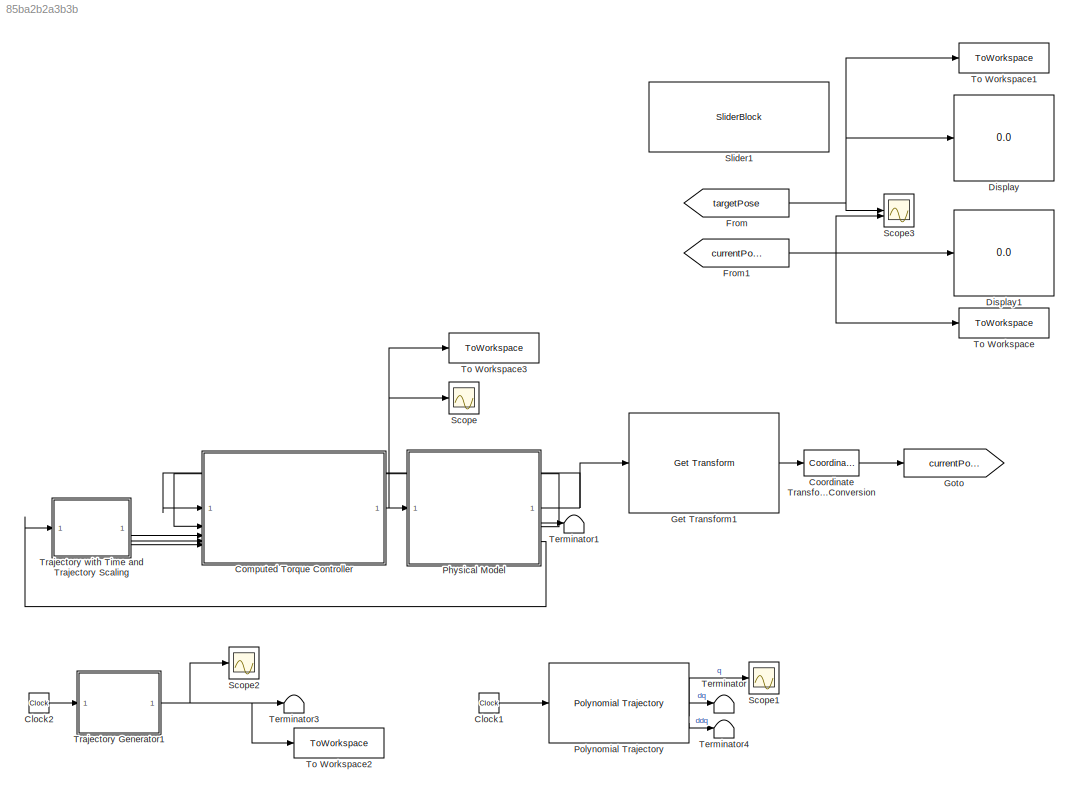
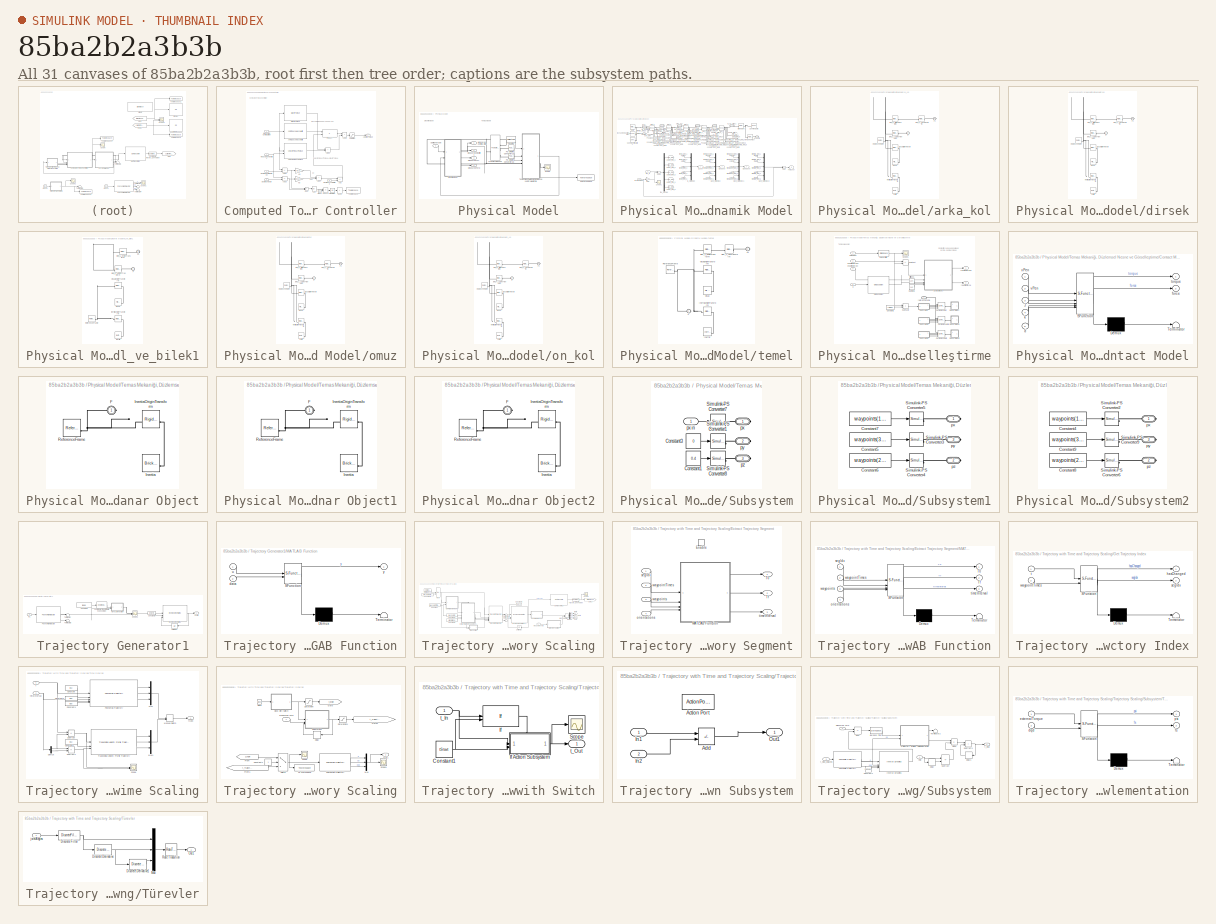
[diagram: thumbnail index - all 31 canvases of the model, root first then tree order]
MODEL slx_85ba2b2a3b3b
KIND model
CONFIG AbsTol = auto
CONFIG EnableMultiTasking = off
CONFIG FixedStep = 0.001
CONFIG MaxStep = auto
CONFIG MinStep = auto
CONFIG RelTol = 1e-3
CONFIG SampleTimeConstraint = Unconstrained
CONFIG SolverName = VariableStepAuto
CONFIG StartTime = 0.0
CONFIG StopTime = 16
BLOCK [Clock] Clock1
  Commented = on
BLOCK [Clock] Clock2
  Commented = on
BLOCK [SubSystem] Computed Torque Controller
BLOCK [Abs] Computed Torque Controller/Abs
  SaturateOnIntegerOverflow = off
BLOCK [Sum] Computed Torque Controller/Add
  IconShape = rectangular
  Inputs = -+
BLOCK [Sum] Computed Torque Controller/Add1
  IconShape = rectangular
BLOCK [Sum] Computed Torque Controller/Add2
  IconShape = rectangular
  Inputs = +-
BLOCK [Sum] Computed Torque Controller/Add3
  IconShape = rectangular
  Inputs = +-
BLOCK [Sum] Computed Torque Controller/Add4
  IconShape = rectangular
BLOCK [Sum] Computed Torque Controller/Add5
  IconShape = rectangular
BLOCK [Outport] Computed Torque Controller/Applied Torque
  VectorParamsAs1DForOutWhenUnconnected = off
BLOCK [Clock] Computed Torque Controller/Clock
BLOCK [Inport] Computed Torque Controller/Desired Acceleration
  Port = 5
BLOCK [Inport] Computed Torque Controller/Desired Configuration
  Port = 3
BLOCK [Inport] Computed Torque Controller/Desired Velocity
  Port = 4
BLOCK [Reference] Computed Torque Controller/Gravity Torque  REF=robotmaniplib/Gravity Torque
  SourceBlock = robotmaniplib/Gravity Torque
  SourceType = Gravity Torque
BLOCK [Integrator] Computed Torque Controller/Integrator
BLOCK [Reference] Computed Torque Controller/Joint Space Mass Matrix  REF=robotmaniplib/Joint Space Mass Matrix
  SourceBlock = robotmaniplib/Joint Space Mass Matrix
  SourceType = Joint Space Mass Matrix
BLOCK [Gain] Computed Torque Controller/Kd
  Gain = K(2)
BLOCK [Gain] Computed Torque Controller/Kp
  Gain = K(1)
BLOCK [Inport] Computed Torque Controller/Measured Configuration
BLOCK [Inport] Computed Torque Controller/Measured Velocities
  NameLocation = top
  Port = 2
BLOCK [Product] Computed Torque Controller/Product
  Multiplication = Matrix(*)
BLOCK [Product] Computed Torque Controller/Product1
BLOCK [Saturate] Computed Torque Controller/Saturation
  LowerLimit = -100
  UpperLimit = 100
BLOCK [Sum] Computed Torque Controller/Sum
  IconShape = rectangular
BLOCK [Sum] Computed Torque Controller/Sum1
  IconShape = rectangular
  Inputs = +
BLOCK [ToWorkspace] Computed Torque Controller/To Workspace
  FixptAsFi = on
  MaxDataPoints = inf
  SampleTime = -1
  Save2DSignal = 2-D array (concatenate along first dimension)
  VariableName = error_integral
BLOCK [Reference] Computed Torque Controller/Velocity Product Torque  REF=robotmaniplib/Velocity Product Torque
  SourceBlock = robotmaniplib/Velocity Product Torque
  SourceType = Velocity Product Torque
BLOCK [Reference] Coordinate Transformation Conversion  REF=robotcorelib/Coordinate Transformation Conversion
  LibrarySourceBlock = navlib/Utilities/Coordinate Transformation Conversion
  SourceBlock = robotcorelib/Coordinate Transformation Conversion
  SourceType = robotics.slcore.internal.block.CoordinateTransformationConversion
BLOCK [Display] Display
  Decimation = 1
BLOCK [Display] Display1
  Decimation = 1
BLOCK [From] From
  GotoTag = targetPose
  TagVisibility = global
BLOCK [From] From1
  GotoTag = currentPose
BLOCK [Reference] Get Transform1  REF=robotmaniplib/Get Transform
  SourceBlock = robotmaniplib/Get Transform
  SourceType = Get Transform
BLOCK [Goto] Goto
  GotoTag = currentPose
BLOCK [SubSystem] Physical Model
BLOCK [Inport] Physical Model/Applied Torque
BLOCK [Constant] Physical Model/Constant
  Value = objectPos
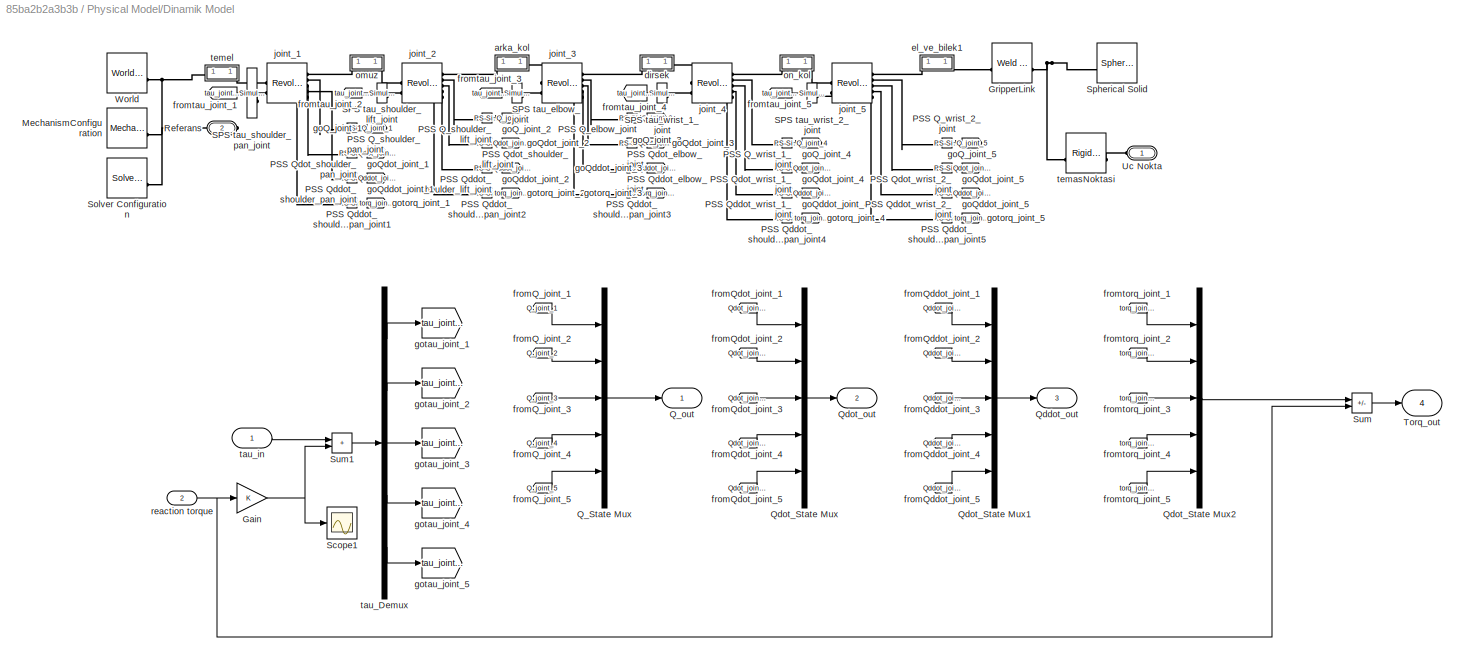
BLOCK [SubSystem] Physical Model/Dinamik Model
  PortSchema = {"entries":[{"content":{"sides":[{"content":{"connectorIds":["In1","LConn1","In2"]},"type":"ConnectorPlacement.EquallySpacedRectSide","uuid":"664d0935-1bf3-446c-8732-22792c17880e"},{"content":{"connectorIds":["Out1","Out2","Out3","Out4","RConn1"],"side":"RIGHT"},"type":"ConnectorPlacement.EquallySpacedRectSide","uuid":"708aa5df-690c-4635-a2be-b9b7c80f1d52"},{"content":{"side":"TOP"},"type":"Connec...<+267ch>
BLOCK [Gain] Physical Model/Dinamik Model/Gain
BLOCK [Reference] Physical Model/Dinamik Model/GripperLink  REF=sm_lib/Joints/Weld Joint
  SourceBlock = sm_lib/Joints/Weld Joint
  SourceType = Weld Joint
BLOCK [Reference] Physical Model/Dinamik Model/MechanismConfiguration  REF=sm_lib/Utilities/Mechanism
Configuration
  SourceBlock = sm_lib/Utilities/Mechanism\nConfiguration
  SourceType = Mechanism\nConfiguration
BLOCK [Reference] Physical Model/Dinamik Model/PSS Q_elbow_joint  REF=nesl_utility/PS-Simulink
Converter
  SourceBlock = nesl_utility/PS-Simulink\nConverter
  SourceType = PS-Simulink\nConverter
BLOCK [Reference] Physical Model/Dinamik Model/PSS Q_shoulder_lift_joint  REF=nesl_utility/PS-Simulink
Converter
  SourceBlock = nesl_utility/PS-Simulink\nConverter
  SourceType = PS-Simulink\nConverter
BLOCK [Reference] Physical Model/Dinamik Model/PSS Q_shoulder_pan_joint  REF=nesl_utility/PS-Simulink
Converter
  SourceBlock = nesl_utility/PS-Simulink\nConverter
  SourceType = PS-Simulink\nConverter
BLOCK [Reference] Physical Model/Dinamik Model/PSS Q_wrist_1_joint  REF=nesl_utility/PS-Simulink
Converter
  SourceBlock = nesl_utility/PS-Simulink\nConverter
  SourceType = PS-Simulink\nConverter
BLOCK [Reference] Physical Model/Dinamik Model/PSS Q_wrist_2_joint  REF=nesl_utility/PS-Simulink
Converter
  SourceBlock = nesl_utility/PS-Simulink\nConverter
  SourceType = PS-Simulink\nConverter
BLOCK [Reference] Physical Model/Dinamik Model/PSS Qddot_elbow_joint  REF=nesl_utility/PS-Simulink
Converter
  SourceBlock = nesl_utility/PS-Simulink\nConverter
  SourceType = PS-Simulink\nConverter
BLOCK [Reference] Physical Model/Dinamik Model/PSS Qddot_shoulder_lift_joint  REF=nesl_utility/PS-Simulink
Converter
  SourceBlock = nesl_utility/PS-Simulink\nConverter
  SourceType = PS-Simulink\nConverter
BLOCK [Reference] Physical Model/Dinamik Model/PSS Qddot_shoulder_pan_joint  REF=nesl_utility/PS-Simulink
Converter
  SourceBlock = nesl_utility/PS-Simulink\nConverter
  SourceType = PS-Simulink\nConverter
BLOCK [Reference] Physical Model/Dinamik Model/PSS Qddot_shoulder_pan_joint1  REF=nesl_utility/PS-Simulink
Converter
  SourceBlock = nesl_utility/PS-Simulink\nConverter
  SourceType = PS-Simulink\nConverter
BLOCK [Reference] Physical Model/Dinamik Model/PSS Qddot_shoulder_pan_joint2  REF=nesl_utility/PS-Simulink
Converter
  SourceBlock = nesl_utility/PS-Simulink\nConverter
  SourceType = PS-Simulink\nConverter
BLOCK [Reference] Physical Model/Dinamik Model/PSS Qddot_shoulder_pan_joint3  REF=nesl_utility/PS-Simulink
Converter
  SourceBlock = nesl_utility/PS-Simulink\nConverter
  SourceType = PS-Simulink\nConverter
BLOCK [Reference] Physical Model/Dinamik Model/PSS Qddot_shoulder_pan_joint4  REF=nesl_utility/PS-Simulink
Converter
  SourceBlock = nesl_utility/PS-Simulink\nConverter
  SourceType = PS-Simulink\nConverter
BLOCK [Reference] Physical Model/Dinamik Model/PSS Qddot_shoulder_pan_joint5  REF=nesl_utility/PS-Simulink
Converter
  SourceBlock = nesl_utility/PS-Simulink\nConverter
  SourceType = PS-Simulink\nConverter
BLOCK [Reference] Physical Model/Dinamik Model/PSS Qddot_wrist_1_joint  REF=nesl_utility/PS-Simulink
Converter
  SourceBlock = nesl_utility/PS-Simulink\nConverter
  SourceType = PS-Simulink\nConverter
BLOCK [Reference] Physical Model/Dinamik Model/PSS Qddot_wrist_2_joint  REF=nesl_utility/PS-Simulink
Converter
  SourceBlock = nesl_utility/PS-Simulink\nConverter
  SourceType = PS-Simulink\nConverter
BLOCK [Reference] Physical Model/Dinamik Model/PSS Qdot_elbow_joint  REF=nesl_utility/PS-Simulink
Converter
  SourceBlock = nesl_utility/PS-Simulink\nConverter
  SourceType = PS-Simulink\nConverter
BLOCK [Reference] Physical Model/Dinamik Model/PSS Qdot_shoulder_lift_joint  REF=nesl_utility/PS-Simulink
Converter
  SourceBlock = nesl_utility/PS-Simulink\nConverter
  SourceType = PS-Simulink\nConverter
BLOCK [Reference] Physical Model/Dinamik Model/PSS Qdot_shoulder_pan_joint  REF=nesl_utility/PS-Simulink
Converter
  SourceBlock = nesl_utility/PS-Simulink\nConverter
  SourceType = PS-Simulink\nConverter
BLOCK [Reference] Physical Model/Dinamik Model/PSS Qdot_wrist_1_joint  REF=nesl_utility/PS-Simulink
Converter
  SourceBlock = nesl_utility/PS-Simulink\nConverter
  SourceType = PS-Simulink\nConverter
BLOCK [Reference] Physical Model/Dinamik Model/PSS Qdot_wrist_2_joint  REF=nesl_utility/PS-Simulink
Converter
  SourceBlock = nesl_utility/PS-Simulink\nConverter
  SourceType = PS-Simulink\nConverter
BLOCK [Mux] Physical Model/Dinamik Model/Q_State Mux
  DisplayOption = bar
  Inputs = 5
BLOCK [Outport] Physical Model/Dinamik Model/Q_out
BLOCK [Outport] Physical Model/Dinamik Model/Qddot_out
  Port = 3
BLOCK [Mux] Physical Model/Dinamik Model/Qdot_State Mux
  DisplayOption = bar
  Inputs = 5
BLOCK [Mux] Physical Model/Dinamik Model/Qdot_State Mux1
  DisplayOption = bar
  Inputs = 5
BLOCK [Mux] Physical Model/Dinamik Model/Qdot_State Mux2
  DisplayOption = bar
  Inputs = 5
BLOCK [Outport] Physical Model/Dinamik Model/Qdot_out
  Port = 2
BLOCK [PMIOPort] Physical Model/Dinamik Model/Referans
  Port = 2
  Side = Right
BLOCK [Reference] Physical Model/Dinamik Model/SPS tau_elbow_joint  REF=nesl_utility/Simulink-PS
Converter
  SourceBlock = nesl_utility/Simulink-PS\nConverter
  SourceType = Simulink-PS\nConverter
BLOCK [Reference] Physical Model/Dinamik Model/SPS tau_shoulder_lift_joint  REF=nesl_utility/Simulink-PS
Converter
  SourceBlock = nesl_utility/Simulink-PS\nConverter
  SourceType = Simulink-PS\nConverter
BLOCK [Reference] Physical Model/Dinamik Model/SPS tau_shoulder_pan_joint  REF=nesl_utility/Simulink-PS
Converter
  SourceBlock = nesl_utility/Simulink-PS\nConverter
  SourceType = Simulink-PS\nConverter
BLOCK [Reference] Physical Model/Dinamik Model/SPS tau_wrist_1_joint  REF=nesl_utility/Simulink-PS
Converter
  SourceBlock = nesl_utility/Simulink-PS\nConverter
  SourceType = Simulink-PS\nConverter
BLOCK [Reference] Physical Model/Dinamik Model/SPS tau_wrist_2_joint  REF=nesl_utility/Simulink-PS
Converter
  SourceBlock = nesl_utility/Simulink-PS\nConverter
  SourceType = Simulink-PS\nConverter
BLOCK [Scope] Physical Model/Dinamik Model/Scope1
  Floating = off
  NumInputPorts = 1
  ScopeSpecificationString = Simulink.scopes.TimeScopeBlockCfg('CurrentConfiguration', extmgr.ConfigurationSet(extmgr.Configuration('Core','General UI',true),extmgr.Configuration('Core','Source UI',true),extmgr.Configuration('Sources','WiredSimulink',true,'DataLoggingVariableName','ScopeData2'),extmgr.Configuration('Visuals','Time Domain',true,'SerializedDisplays',{struct('MinYLimReal','-0.00904','MaxYLimReal','0.01101','YLab...<+1509ch>
BLOCK [Reference] Physical Model/Dinamik Model/Solver Configuration  REF=nesl_utility/Solver
Configuration
  SourceBlock = nesl_utility/Solver\nConfiguration
  SourceType = Solver\nConfiguration
BLOCK [Reference] Physical Model/Dinamik Model/Spherical Solid  REF=sm_lib/Body Elements/Spherical Solid
  NameLocation = top
  SourceBlock = sm_lib/Body Elements/Spherical Solid
  SourceType = Spherical Solid
BLOCK [Sum] Physical Model/Dinamik Model/Sum
  IconShape = rectangular
  Inputs = +-
BLOCK [Sum] Physical Model/Dinamik Model/Sum1
  IconShape = rectangular
BLOCK [Outport] Physical Model/Dinamik Model/Torq_out
  Port = 4
BLOCK [PMIOPort] Physical Model/Dinamik Model/Uc Nokta
  NameLocation = top
  Side = Left
BLOCK [Reference] Physical Model/Dinamik Model/World  REF=sm_lib/Frames and
Transforms/World Frame
  SourceBlock = sm_lib/Frames and\nTransforms/World Frame
  SourceType = World Frame
BLOCK [SubSystem] Physical Model/Dinamik Model/arka_kol
  NameLocation = top
BLOCK [PMIOPort] Physical Model/Dinamik Model/arka_kol/F
  Side = Left
BLOCK [PMIOPort] Physical Model/Dinamik Model/arka_kol/F1
  Port = 2
  Side = Right
BLOCK [Reference] Physical Model/Dinamik Model/arka_kol/Inertia  REF=sm_lib/Body Elements/Inertia
  SourceBlock = sm_lib/Body Elements/Inertia
  SourceType = Inertia
BLOCK [Reference] Physical Model/Dinamik Model/arka_kol/InertiaOriginTransform  REF=sm_lib/Frames and
Transforms/Rigid
Transform
  SourceBlock = sm_lib/Frames and\nTransforms/Rigid\nTransform
  SourceType = Rigid\nTransform
BLOCK [Reference] Physical Model/Dinamik Model/arka_kol/ReferenceFrame  REF=sm_lib/Frames and
Transforms/Reference
Frame
  SourceBlock = sm_lib/Frames and\nTransforms/Reference\nFrame
  SourceType = Reference\nFrame
BLOCK [Reference] Physical Model/Dinamik Model/arka_kol/Visual  REF=sm_lib/Body Elements/File Solid
  SourceBlock = sm_lib/Body Elements/File Solid
  SourceType = File Solid
BLOCK [Reference] Physical Model/Dinamik Model/arka_kol/VisualOriginTransform  REF=sm_lib/Frames and
Transforms/Rigid
Transform
  SourceBlock = sm_lib/Frames and\nTransforms/Rigid\nTransform
  SourceType = Rigid\nTransform
BLOCK [Reference] Physical Model/Dinamik Model/arka_kol/joint_2_AxisInvTransform  REF=sm_lib/Frames and
Transforms/Rigid
Transform
  SourceBlock = sm_lib/Frames and\nTransforms/Rigid\nTransform
  SourceType = Rigid\nTransform
BLOCK [Reference] Physical Model/Dinamik Model/arka_kol/joint_3_AxisTransform  REF=sm_lib/Frames and
Transforms/Rigid
Transform
  SourceBlock = sm_lib/Frames and\nTransforms/Rigid\nTransform
  SourceType = Rigid\nTransform
BLOCK [Reference] Physical Model/Dinamik Model/arka_kol/joint_3_OriginTransform  REF=sm_lib/Frames and
Transforms/Rigid
Transform
  SourceBlock = sm_lib/Frames and\nTransforms/Rigid\nTransform
  SourceType = Rigid\nTransform
BLOCK [SubSystem] Physical Model/Dinamik Model/dirsek
  NameLocation = top
BLOCK [PMIOPort] Physical Model/Dinamik Model/dirsek/F
  Side = Left
BLOCK [PMIOPort] Physical Model/Dinamik Model/dirsek/F1
  Port = 2
  Side = Right
BLOCK [Reference] Physical Model/Dinamik Model/dirsek/Inertia  REF=sm_lib/Body Elements/Inertia
  SourceBlock = sm_lib/Body Elements/Inertia
  SourceType = Inertia
BLOCK [Reference] Physical Model/Dinamik Model/dirsek/InertiaOriginTransform  REF=sm_lib/Frames and
Transforms/Rigid
Transform
  SourceBlock = sm_lib/Frames and\nTransforms/Rigid\nTransform
  SourceType = Rigid\nTransform
BLOCK [Reference] Physical Model/Dinamik Model/dirsek/ReferenceFrame  REF=sm_lib/Frames and
Transforms/Reference
Frame
  SourceBlock = sm_lib/Frames and\nTransforms/Reference\nFrame
  SourceType = Reference\nFrame
BLOCK [Reference] Physical Model/Dinamik Model/dirsek/Visual  REF=sm_lib/Body Elements/File Solid
  SourceBlock = sm_lib/Body Elements/File Solid
  SourceType = File Solid
BLOCK [Reference] Physical Model/Dinamik Model/dirsek/VisualOriginTransform  REF=sm_lib/Frames and
Transforms/Rigid
Transform
  SourceBlock = sm_lib/Frames and\nTransforms/Rigid\nTransform
  SourceType = Rigid\nTransform
BLOCK [Reference] Physical Model/Dinamik Model/dirsek/joint_3_AxisInvTransform  REF=sm_lib/Frames and
Transforms/Rigid
Transform
  SourceBlock = sm_lib/Frames and\nTransforms/Rigid\nTransform
  SourceType = Rigid\nTransform
BLOCK [Reference] Physical Model/Dinamik Model/dirsek/joint_4_AxisTransform  REF=sm_lib/Frames and
Transforms/Rigid
Transform
  SourceBlock = sm_lib/Frames and\nTransforms/Rigid\nTransform
  SourceType = Rigid\nTransform
BLOCK [Reference] Physical Model/Dinamik Model/dirsek/joint_4_OriginTransform  REF=sm_lib/Frames and
Transforms/Rigid
Transform
  SourceBlock = sm_lib/Frames and\nTransforms/Rigid\nTransform
  SourceType = Rigid\nTransform
BLOCK [SubSystem] Physical Model/Dinamik Model/el_ve_bilek1
BLOCK [PMIOPort] Physical Model/Dinamik Model/el_ve_bilek1/F
  Side = Left
BLOCK [PMIOPort] Physical Model/Dinamik Model/el_ve_bilek1/F2
  Port = 2
  Side = Right
BLOCK [Reference] Physical Model/Dinamik Model/el_ve_bilek1/Inertia  REF=sm_lib/Body Elements/Inertia
  SourceBlock = sm_lib/Body Elements/Inertia
  SourceType = Inertia
BLOCK [Reference] Physical Model/Dinamik Model/el_ve_bilek1/InertiaOriginTransform  REF=sm_lib/Frames and
Transforms/Rigid
Transform
  SourceBlock = sm_lib/Frames and\nTransforms/Rigid\nTransform
  SourceType = Rigid\nTransform
BLOCK [Reference] Physical Model/Dinamik Model/el_ve_bilek1/ReferenceFrame  REF=sm_lib/Frames and
Transforms/Reference
Frame
  SourceBlock = sm_lib/Frames and\nTransforms/Reference\nFrame
  SourceType = Reference\nFrame
BLOCK [Reference] Physical Model/Dinamik Model/el_ve_bilek1/Visual  REF=sm_lib/Body Elements/File Solid
  SourceBlock = sm_lib/Body Elements/File Solid
  SourceType = File Solid
BLOCK [Reference] Physical Model/Dinamik Model/el_ve_bilek1/VisualOriginTransform  REF=sm_lib/Frames and
Transforms/Rigid
Transform
  SourceBlock = sm_lib/Frames and\nTransforms/Rigid\nTransform
  SourceType = Rigid\nTransform
BLOCK [Reference] Physical Model/Dinamik Model/el_ve_bilek1/joint_5_AxisInvTransform  REF=sm_lib/Frames and
Transforms/Rigid
Transform
  SourceBlock = sm_lib/Frames and\nTransforms/Rigid\nTransform
  SourceType = Rigid\nTransform
BLOCK [Reference] Physical Model/Dinamik Model/el_ve_bilek1/joint_5_OriginTransform  REF=sm_lib/Frames and
Transforms/Rigid
Transform
  SourceBlock = sm_lib/Frames and\nTransforms/Rigid\nTransform
  SourceType = Rigid\nTransform
BLOCK [From] Physical Model/Dinamik Model/fromQ_joint_1
  GotoTag = Q_joint_1
BLOCK [From] Physical Model/Dinamik Model/fromQ_joint_2
  GotoTag = Q_joint_2
BLOCK [From] Physical Model/Dinamik Model/fromQ_joint_3
  GotoTag = Q_joint_3
BLOCK [From] Physical Model/Dinamik Model/fromQ_joint_4
  GotoTag = Q_joint_4
BLOCK [From] Physical Model/Dinamik Model/fromQ_joint_5
  GotoTag = Q_joint_5
BLOCK [From] Physical Model/Dinamik Model/fromQddot_joint_1
  GotoTag = Qddot_joint_1
BLOCK [From] Physical Model/Dinamik Model/fromQddot_joint_2
  GotoTag = Qddot_joint_2
BLOCK [From] Physical Model/Dinamik Model/fromQddot_joint_3
  GotoTag = Qddot_joint_3
BLOCK [From] Physical Model/Dinamik Model/fromQddot_joint_4
  GotoTag = Qddot_joint_4
BLOCK [From] Physical Model/Dinamik Model/fromQddot_joint_5
  GotoTag = Qddot_joint_5
BLOCK [From] Physical Model/Dinamik Model/fromQdot_joint_1
  GotoTag = Qdot_joint_1
BLOCK [From] Physical Model/Dinamik Model/fromQdot_joint_2
  GotoTag = Qdot_joint_2
BLOCK [From] Physical Model/Dinamik Model/fromQdot_joint_3
  GotoTag = Qdot_joint_3
BLOCK [From] Physical Model/Dinamik Model/fromQdot_joint_4
  GotoTag = Qdot_joint_4
BLOCK [From] Physical Model/Dinamik Model/fromQdot_joint_5
  GotoTag = Qdot_joint_5
BLOCK [From] Physical Model/Dinamik Model/fromtau_joint_1
  GotoTag = tau_joint_1
BLOCK [From] Physical Model/Dinamik Model/fromtau_joint_2
  GotoTag = tau_joint_2
BLOCK [From] Physical Model/Dinamik Model/fromtau_joint_3
  GotoTag = tau_joint_3
BLOCK [From] Physical Model/Dinamik Model/fromtau_joint_4
  GotoTag = tau_joint_4
BLOCK [From] Physical Model/Dinamik Model/fromtau_joint_5
  GotoTag = tau_joint_5
BLOCK [From] Physical Model/Dinamik Model/fromtorq_joint_1
  GotoTag = torq_joint_1
BLOCK [From] Physical Model/Dinamik Model/fromtorq_joint_2
  GotoTag = torq_joint_2
BLOCK [From] Physical Model/Dinamik Model/fromtorq_joint_3
  GotoTag = torq_joint_3
BLOCK [From] Physical Model/Dinamik Model/fromtorq_joint_4
  GotoTag = torq_joint_4
BLOCK [From] Physical Model/Dinamik Model/fromtorq_joint_5
  GotoTag = torq_joint_5
BLOCK [Goto] Physical Model/Dinamik Model/goQ_joint_1
  GotoTag = Q_joint_1
BLOCK [Goto] Physical Model/Dinamik Model/goQ_joint_2
  GotoTag = Q_joint_2
BLOCK [Goto] Physical Model/Dinamik Model/goQ_joint_3
  GotoTag = Q_joint_3
BLOCK [Goto] Physical Model/Dinamik Model/goQ_joint_4
  GotoTag = Q_joint_4
BLOCK [Goto] Physical Model/Dinamik Model/goQ_joint_5
  GotoTag = Q_joint_5
BLOCK [Goto] Physical Model/Dinamik Model/goQddot_joint_1
  GotoTag = Qddot_joint_1
BLOCK [Goto] Physical Model/Dinamik Model/goQddot_joint_2
  GotoTag = Qddot_joint_2
BLOCK [Goto] Physical Model/Dinamik Model/goQddot_joint_3
  GotoTag = Qddot_joint_3
BLOCK [Goto] Physical Model/Dinamik Model/goQddot_joint_4
  GotoTag = Qddot_joint_4
BLOCK [Goto] Physical Model/Dinamik Model/goQddot_joint_5
  GotoTag = Qddot_joint_5
BLOCK [Goto] Physical Model/Dinamik Model/goQdot_joint_1
  GotoTag = Qdot_joint_1
BLOCK [Goto] Physical Model/Dinamik Model/goQdot_joint_2
  GotoTag = Qdot_joint_2
BLOCK [Goto] Physical Model/Dinamik Model/goQdot_joint_3
  GotoTag = Qdot_joint_3
BLOCK [Goto] Physical Model/Dinamik Model/goQdot_joint_4
  GotoTag = Qdot_joint_4
BLOCK [Goto] Physical Model/Dinamik Model/goQdot_joint_5
  GotoTag = Qdot_joint_5
BLOCK [Goto] Physical Model/Dinamik Model/gotau_joint_1
  GotoTag = tau_joint_1
BLOCK [Goto] Physical Model/Dinamik Model/gotau_joint_2
  GotoTag = tau_joint_2
BLOCK [Goto] Physical Model/Dinamik Model/gotau_joint_3
  GotoTag = tau_joint_3
BLOCK [Goto] Physical Model/Dinamik Model/gotau_joint_4
  GotoTag = tau_joint_4
BLOCK [Goto] Physical Model/Dinamik Model/gotau_joint_5
  GotoTag = tau_joint_5
BLOCK [Goto] Physical Model/Dinamik Model/gotorq_joint_1
  GotoTag = torq_joint_1
BLOCK [Goto] Physical Model/Dinamik Model/gotorq_joint_2
  GotoTag = torq_joint_2
BLOCK [Goto] Physical Model/Dinamik Model/gotorq_joint_3
  GotoTag = torq_joint_3
BLOCK [Goto] Physical Model/Dinamik Model/gotorq_joint_4
  GotoTag = torq_joint_4
BLOCK [Goto] Physical Model/Dinamik Model/gotorq_joint_5
  GotoTag = torq_joint_5
BLOCK [Reference] Physical Model/Dinamik Model/joint_1  REF=sm_lib/Joints/Revolute Joint
  SourceBlock = sm_lib/Joints/Revolute Joint
  SourceType = Revolute Joint
BLOCK [Reference] Physical Model/Dinamik Model/joint_2  REF=sm_lib/Joints/Revolute Joint
  SourceBlock = sm_lib/Joints/Revolute Joint
  SourceType = Revolute Joint
BLOCK [Reference] Physical Model/Dinamik Model/joint_3  REF=sm_lib/Joints/Revolute Joint
  SourceBlock = sm_lib/Joints/Revolute Joint
  SourceType = Revolute Joint
BLOCK [Reference] Physical Model/Dinamik Model/joint_4  REF=sm_lib/Joints/Revolute Joint
  SourceBlock = sm_lib/Joints/Revolute Joint
  SourceType = Revolute Joint
BLOCK [Reference] Physical Model/Dinamik Model/joint_5  REF=sm_lib/Joints/Revolute Joint
  SourceBlock = sm_lib/Joints/Revolute Joint
  SourceType = Revolute Joint
BLOCK [SubSystem] Physical Model/Dinamik Model/omuz
  NameLocation = top
BLOCK [PMIOPort] Physical Model/Dinamik Model/omuz/F
  Side = Left
BLOCK [PMIOPort] Physical Model/Dinamik Model/omuz/F1
  Port = 2
  Side = Right
BLOCK [Reference] Physical Model/Dinamik Model/omuz/Inertia  REF=sm_lib/Body Elements/Inertia
  SourceBlock = sm_lib/Body Elements/Inertia
  SourceType = Inertia
BLOCK [Reference] Physical Model/Dinamik Model/omuz/InertiaOriginTransform  REF=sm_lib/Frames and
Transforms/Rigid
Transform
  SourceBlock = sm_lib/Frames and\nTransforms/Rigid\nTransform
  SourceType = Rigid\nTransform
BLOCK [Reference] Physical Model/Dinamik Model/omuz/ReferenceFrame  REF=sm_lib/Frames and
Transforms/Reference
Frame
  SourceBlock = sm_lib/Frames and\nTransforms/Reference\nFrame
  SourceType = Reference\nFrame
BLOCK [Reference] Physical Model/Dinamik Model/omuz/Visual  REF=sm_lib/Body Elements/File Solid
  SourceBlock = sm_lib/Body Elements/File Solid
  SourceType = File Solid
BLOCK [Reference] Physical Model/Dinamik Model/omuz/VisualOriginTransform  REF=sm_lib/Frames and
Transforms/Rigid
Transform
  SourceBlock = sm_lib/Frames and\nTransforms/Rigid\nTransform
  SourceType = Rigid\nTransform
BLOCK [Reference] Physical Model/Dinamik Model/omuz/joint_1_AxisInvTransform  REF=sm_lib/Frames and
Transforms/Rigid
Transform
  SourceBlock = sm_lib/Frames and\nTransforms/Rigid\nTransform
  SourceType = Rigid\nTransform
BLOCK [Reference] Physical Model/Dinamik Model/omuz/joint_2_AxisTransform  REF=sm_lib/Frames and
Transforms/Rigid
Transform
  SourceBlock = sm_lib/Frames and\nTransforms/Rigid\nTransform
  SourceType = Rigid\nTransform
BLOCK [Reference] Physical Model/Dinamik Model/omuz/joint_2_OriginTransform  REF=sm_lib/Frames and
Transforms/Rigid
Transform
  SourceBlock = sm_lib/Frames and\nTransforms/Rigid\nTransform
  SourceType = Rigid\nTransform
BLOCK [SubSystem] Physical Model/Dinamik Model/on_kol
  NameLocation = top
BLOCK [PMIOPort] Physical Model/Dinamik Model/on_kol/F
  Side = Left
BLOCK [PMIOPort] Physical Model/Dinamik Model/on_kol/F1
  Port = 2
  Side = Right
BLOCK [Reference] Physical Model/Dinamik Model/on_kol/Inertia  REF=sm_lib/Body Elements/Inertia
  SourceBlock = sm_lib/Body Elements/Inertia
  SourceType = Inertia
BLOCK [Reference] Physical Model/Dinamik Model/on_kol/InertiaOriginTransform  REF=sm_lib/Frames and
Transforms/Rigid
Transform
  SourceBlock = sm_lib/Frames and\nTransforms/Rigid\nTransform
  SourceType = Rigid\nTransform
BLOCK [Reference] Physical Model/Dinamik Model/on_kol/ReferenceFrame  REF=sm_lib/Frames and
Transforms/Reference
Frame
  SourceBlock = sm_lib/Frames and\nTransforms/Reference\nFrame
  SourceType = Reference\nFrame
BLOCK [Reference] Physical Model/Dinamik Model/on_kol/Visual  REF=sm_lib/Body Elements/File Solid
  SourceBlock = sm_lib/Body Elements/File Solid
  SourceType = File Solid
BLOCK [Reference] Physical Model/Dinamik Model/on_kol/VisualOriginTransform  REF=sm_lib/Frames and
Transforms/Rigid
Transform
  SourceBlock = sm_lib/Frames and\nTransforms/Rigid\nTransform
  SourceType = Rigid\nTransform
BLOCK [Reference] Physical Model/Dinamik Model/on_kol/joint_4_AxisInvTransform  REF=sm_lib/Frames and
Transforms/Rigid
Transform
  SourceBlock = sm_lib/Frames and\nTransforms/Rigid\nTransform
  SourceType = Rigid\nTransform
BLOCK [Reference] Physical Model/Dinamik Model/on_kol/joint_5_AxisTransform  REF=sm_lib/Frames and
Transforms/Rigid
Transform
  SourceBlock = sm_lib/Frames and\nTransforms/Rigid\nTransform
  SourceType = Rigid\nTransform
BLOCK [Reference] Physical Model/Dinamik Model/on_kol/joint_5_OriginTransform  REF=sm_lib/Frames and
Transforms/Rigid
Transform
  SourceBlock = sm_lib/Frames and\nTransforms/Rigid\nTransform
  SourceType = Rigid\nTransform
BLOCK [Inport] Physical Model/Dinamik Model/reaction torque
  Port = 2
BLOCK [Demux] Physical Model/Dinamik Model/tau_Demux
  Outputs = 5
BLOCK [Inport] Physical Model/Dinamik Model/tau_in
BLOCK [Reference] Physical Model/Dinamik Model/temasNoktasi  REF=sm_lib/Frames and
Transforms/Rigid
Transform
  SourceBlock = sm_lib/Frames and\nTransforms/Rigid\nTransform
  SourceType = Rigid\nTransform
BLOCK [SubSystem] Physical Model/Dinamik Model/temel
  NameLocation = top
BLOCK [PMIOPort] Physical Model/Dinamik Model/temel/F
  Side = Left
BLOCK [PMIOPort] Physical Model/Dinamik Model/temel/F1
  Port = 2
  Side = Right
BLOCK [Reference] Physical Model/Dinamik Model/temel/Inertia  REF=sm_lib/Body Elements/Inertia
  SourceBlock = sm_lib/Body Elements/Inertia
  SourceType = Inertia
BLOCK [Reference] Physical Model/Dinamik Model/temel/InertiaOriginTransform  REF=sm_lib/Frames and
Transforms/Rigid
Transform
  SourceBlock = sm_lib/Frames and\nTransforms/Rigid\nTransform
  SourceType = Rigid\nTransform
BLOCK [Reference] Physical Model/Dinamik Model/temel/ReferenceFrame  REF=sm_lib/Frames and
Transforms/Reference
Frame
  SourceBlock = sm_lib/Frames and\nTransforms/Reference\nFrame
  SourceType = Reference\nFrame
BLOCK [Reference] Physical Model/Dinamik Model/temel/Visual  REF=sm_lib/Body Elements/File Solid
  SourceBlock = sm_lib/Body Elements/File Solid
  SourceType = File Solid
BLOCK [Reference] Physical Model/Dinamik Model/temel/VisualOriginTransform  REF=sm_lib/Frames and
Transforms/Rigid
Transform
  SourceBlock = sm_lib/Frames and\nTransforms/Rigid\nTransform
  SourceType = Rigid\nTransform
BLOCK [Reference] Physical Model/Dinamik Model/temel/joint_1_AxisTransform  REF=sm_lib/Frames and
Transforms/Rigid
Transform
  SourceBlock = sm_lib/Frames and\nTransforms/Rigid\nTransform
  SourceType = Rigid\nTransform
BLOCK [Reference] Physical Model/Dinamik Model/temel/joint_1_OriginTransform  REF=sm_lib/Frames and
Transforms/Rigid
Transform
  SourceBlock = sm_lib/Frames and\nTransforms/Rigid\nTransform
  SourceType = Rigid\nTransform
BLOCK [Outport] Physical Model/Measured Acc.
  Port = 3
BLOCK [Outport] Physical Model/Measured Configuration
BLOCK [Outport] Physical Model/Measured Torq
  Port = 4
BLOCK [Outport] Physical Model/Measured Velocities
  Port = 2
BLOCK [Reference] Physical Model/PS-Simulink Converter29  REF=nesl_utility/PS-Simulink
Converter
  SourceBlock = nesl_utility/PS-Simulink\nConverter
  SourceType = PS-Simulink\nConverter
BLOCK [Reference] Physical Model/PS-Simulink Converter30  REF=nesl_utility/PS-Simulink
Converter
  SourceBlock = nesl_utility/PS-Simulink\nConverter
  SourceType = PS-Simulink\nConverter
BLOCK [Scope] Physical Model/Scope
  Floating = off
  NumInputPorts = 1
  ScopeSpecificationString = Simulink.scopes.TimeScopeBlockCfg('CurrentConfiguration', extmgr.ConfigurationSet(extmgr.Configuration('Core','General UI',true),extmgr.Configuration('Core','Source UI',true),extmgr.Configuration('Sources','WiredSimulink',true,'DataLoggingVariableName','ScopeData3'),extmgr.Configuration('Visuals','Time Domain',true,'SerializedDisplays',{struct('MinYLimReal','-1.00000','MaxYLimReal','1.00000','YLab...<+1487ch>
BLOCK [SubSystem] Physical Model/Temas Mekaniği, Düzlemsel Nesne ve Görselleştirme
BLOCK [Reference] Physical Model/Temas Mekaniği, Düzlemsel Nesne ve Görselleştirme/Cartesian Joint  REF=sm_lib/Joints/Cartesian
Joint
  SourceBlock = sm_lib/Joints/Cartesian\nJoint
  SourceType = Cartesian\nJoint
BLOCK [Reference] Physical Model/Temas Mekaniği, Düzlemsel Nesne ve Görselleştirme/Cartesian Joint1  REF=sm_lib/Joints/Cartesian
Joint
  SourceBlock = sm_lib/Joints/Cartesian\nJoint
  SourceType = Cartesian\nJoint
BLOCK [Reference] Physical Model/Temas Mekaniği, Düzlemsel Nesne ve Görselleştirme/Cartesian Joint2  REF=sm_lib/Joints/Cartesian
Joint
  SourceBlock = sm_lib/Joints/Cartesian\nJoint
  SourceType = Cartesian\nJoint
BLOCK [Constant] Physical Model/Temas Mekaniği, Düzlemsel Nesne ve Görselleştirme/Constant2
  Value = refPos
BLOCK [SubSystem] Physical Model/Temas Mekaniği, Düzlemsel Nesne ve Görselleştirme/Contact Model
  ErrorFcn = Stateflow.Translate.translate
  PermitHierarchicalResolution = ExplicitOnly
  SFBlockType = MATLAB Function
  TreatAsAtomicUnit = on
BLOCK [Demux] Physical Model/Temas Mekaniği, Düzlemsel Nesne ve Görselleştirme/Contact Model/ Demux 
  Outputs = 1
BLOCK [S-Function] Physical Model/Temas Mekaniği, Düzlemsel Nesne ve Görselleştirme/Contact Model/ SFunction 
  EnableBusSupport = on
  FunctionName = sf_sfun
  PortCounts = [5 3]
  SFcnIsStateOwnerBlock = off
  SFunctionDeploymentMode = off
  Tag = Stateflow S-Function 7
BLOCK [Terminator] Physical Model/Temas Mekaniği, Düzlemsel Nesne ve Görselleştirme/Contact Model/ Terminator 
BLOCK [Inport] Physical Model/Temas Mekaniği, Düzlemsel Nesne ve Görselleştirme/Contact Model/J
  Port = 3
BLOCK [Inport] Physical Model/Temas Mekaniği, Düzlemsel Nesne ve Görselleştirme/Contact Model/d
  Port = 5
BLOCK [Outport] Physical Model/Temas Mekaniği, Düzlemsel Nesne ve Görselleştirme/Contact Model/force
  Port = 2
  VectorParamsAs1DForOutWhenUnconnected = off
BLOCK [Inport] Physical Model/Temas Mekaniği, Düzlemsel Nesne ve Görselleştirme/Contact Model/k
  Port = 4
BLOCK [Outport] Physical Model/Temas Mekaniği, Düzlemsel Nesne ve Görselleştirme/Contact Model/torque
  VectorParamsAs1DForOutWhenUnconnected = off
BLOCK [Inport] Physical Model/Temas Mekaniği, Düzlemsel Nesne ve Görselleştirme/Contact Model/vPen
  Port = 2
BLOCK [Inport] Physical Model/Temas Mekaniği, Düzlemsel Nesne ve Görselleştirme/Contact Model/xPen
BLOCK [Constant] Physical Model/Temas Mekaniği, Düzlemsel Nesne ve Görselleştirme/Damping
  Value = 1e2
BLOCK [Reference] Physical Model/Temas Mekaniği, Düzlemsel Nesne ve Görselleştirme/Get Jacobian  REF=robotmaniplib/Get Jacobian
  SourceBlock = robotmaniplib/Get Jacobian
  SourceType = Get Jacobian
BLOCK [SubSystem] Physical Model/Temas Mekaniği, Düzlemsel Nesne ve Görselleştirme/Planar Object
BLOCK [PMIOPort] Physical Model/Temas Mekaniği, Düzlemsel Nesne ve Görselleştirme/Planar Object/F
  Side = Left
BLOCK [Reference] Physical Model/Temas Mekaniği, Düzlemsel Nesne ve Görselleştirme/Planar Object/Inertia  REF=sm_lib/Body Elements/Brick Solid
  SourceBlock = sm_lib/Body Elements/Brick Solid
  SourceType = Brick Solid
BLOCK [Reference] Physical Model/Temas Mekaniği, Düzlemsel Nesne ve Görselleştirme/Planar Object/InertiaOriginTransform  REF=sm_lib/Frames and
Transforms/Rigid
Transform
  SourceBlock = sm_lib/Frames and\nTransforms/Rigid\nTransform
  SourceType = Rigid\nTransform
BLOCK [Reference] Physical Model/Temas Mekaniği, Düzlemsel Nesne ve Görselleştirme/Planar Object/ReferenceFrame  REF=sm_lib/Frames and
Transforms/Reference
Frame
  SourceBlock = sm_lib/Frames and\nTransforms/Reference\nFrame
  SourceType = Reference\nFrame
BLOCK [SubSystem] Physical Model/Temas Mekaniği, Düzlemsel Nesne ve Görselleştirme/Planar Object1
BLOCK [PMIOPort] Physical Model/Temas Mekaniği, Düzlemsel Nesne ve Görselleştirme/Planar Object1/F
  Side = Left
BLOCK [Reference] Physical Model/Temas Mekaniği, Düzlemsel Nesne ve Görselleştirme/Planar Object1/Inertia  REF=sm_lib/Body Elements/Brick Solid
  SourceBlock = sm_lib/Body Elements/Brick Solid
  SourceType = Brick Solid
BLOCK [Reference] Physical Model/Temas Mekaniği, Düzlemsel Nesne ve Görselleştirme/Planar Object1/InertiaOriginTransform  REF=sm_lib/Frames and
Transforms/Rigid
Transform
  SourceBlock = sm_lib/Frames and\nTransforms/Rigid\nTransform
  SourceType = Rigid\nTransform
BLOCK [Reference] Physical Model/Temas Mekaniği, Düzlemsel Nesne ve Görselleştirme/Planar Object1/ReferenceFrame  REF=sm_lib/Frames and
Transforms/Reference
Frame
  SourceBlock = sm_lib/Frames and\nTransforms/Reference\nFrame
  SourceType = Reference\nFrame
BLOCK [SubSystem] Physical Model/Temas Mekaniği, Düzlemsel Nesne ve Görselleştirme/Planar Object2
BLOCK [PMIOPort] Physical Model/Temas Mekaniği, Düzlemsel Nesne ve Görselleştirme/Planar Object2/F
  Side = Left
BLOCK [Reference] Physical Model/Temas Mekaniği, Düzlemsel Nesne ve Görselleştirme/Planar Object2/Inertia  REF=sm_lib/Body Elements/Brick Solid
  SourceBlock = sm_lib/Body Elements/Brick Solid
  SourceType = Brick Solid
BLOCK [Reference] Physical Model/Temas Mekaniği, Düzlemsel Nesne ve Görselleştirme/Planar Object2/InertiaOriginTransform  REF=sm_lib/Frames and
Transforms/Rigid
Transform
  SourceBlock = sm_lib/Frames and\nTransforms/Rigid\nTransform
  SourceType = Rigid\nTransform
BLOCK [Reference] Physical Model/Temas Mekaniği, Düzlemsel Nesne ve Görselleştirme/Planar Object2/ReferenceFrame  REF=sm_lib/Frames and
Transforms/Reference
Frame
  SourceBlock = sm_lib/Frames and\nTransforms/Reference\nFrame
  SourceType = Reference\nFrame
BLOCK [Scope] Physical Model/Temas Mekaniği, Düzlemsel Nesne ve Görselleştirme/Scope1
  Floating = off
  NumInputPorts = 1
  ScopeSpecificationString = Simulink.scopes.TimeScopeBlockCfg('CurrentConfiguration', extmgr.ConfigurationSet(extmgr.Configuration('Core','General UI',true),extmgr.Configuration('Core','Source UI',true),extmgr.Configuration('Sources','WiredSimulink',true),extmgr.Configuration('Visuals','Time Domain',true,'SerializedDisplays',{struct('MinYLimReal','0.1','MaxYLimReal','0.3','YLabelReal','','MinYLimMag','0.1','MaxYLimMag','0.3'...<+1374ch>
BLOCK [Constant] Physical Model/Temas Mekaniği, Düzlemsel Nesne ve Görselleştirme/Stiffness
  NameLocation = top
  Value = 1e4
BLOCK [SubSystem] Physical Model/Temas Mekaniği, Düzlemsel Nesne ve Görselleştirme/Subsystem
BLOCK [Constant] Physical Model/Temas Mekaniği, Düzlemsel Nesne ve Görselleştirme/Subsystem/Constant1
  Value = 0.4
BLOCK [Constant] Physical Model/Temas Mekaniği, Düzlemsel Nesne ve Görselleştirme/Subsystem/Constant3
  Value = 0
BLOCK [Reference] Physical Model/Temas Mekaniği, Düzlemsel Nesne ve Görselleştirme/Subsystem/Simulink-PS Converter1  REF=nesl_utility/Simulink-PS
Converter
  SourceBlock = nesl_utility/Simulink-PS\nConverter
  SourceType = Simulink-PS\nConverter
BLOCK [Reference] Physical Model/Temas Mekaniği, Düzlemsel Nesne ve Görselleştirme/Subsystem/Simulink-PS Converter7  REF=nesl_utility/Simulink-PS
Converter
  SourceBlock = nesl_utility/Simulink-PS\nConverter
  SourceType = Simulink-PS\nConverter
BLOCK [Reference] Physical Model/Temas Mekaniği, Düzlemsel Nesne ve Görselleştirme/Subsystem/Simulink-PS Converter8  REF=nesl_utility/Simulink-PS
Converter
  SourceBlock = nesl_utility/Simulink-PS\nConverter
  SourceType = Simulink-PS\nConverter
BLOCK [PMIOPort] Physical Model/Temas Mekaniği, Düzlemsel Nesne ve Görselleştirme/Subsystem/px
  Side = Right
BLOCK [Inport] Physical Model/Temas Mekaniği, Düzlemsel Nesne ve Görselleştirme/Subsystem/px in
BLOCK [PMIOPort] Physical Model/Temas Mekaniği, Düzlemsel Nesne ve Görselleştirme/Subsystem/py
  Port = 2
  Side = Right
BLOCK [PMIOPort] Physical Model/Temas Mekaniği, Düzlemsel Nesne ve Görselleştirme/Subsystem/pz
  Port = 3
  Side = Right
BLOCK [SubSystem] Physical Model/Temas Mekaniği, Düzlemsel Nesne ve Görselleştirme/Subsystem1
BLOCK [Constant] Physical Model/Temas Mekaniği, Düzlemsel Nesne ve Görselleştirme/Subsystem1/Constant5
  Value = waypoints(3,end)
BLOCK [Constant] Physical Model/Temas Mekaniği, Düzlemsel Nesne ve Görselleştirme/Subsystem1/Constant6
  Value = waypoints(2,end)
BLOCK [Constant] Physical Model/Temas Mekaniği, Düzlemsel Nesne ve Görselleştirme/Subsystem1/Constant7
  Value = waypoints(1,end)
BLOCK [Reference] Physical Model/Temas Mekaniği, Düzlemsel Nesne ve Görselleştirme/Subsystem1/Simulink-PS Converter3  REF=nesl_utility/Simulink-PS
Converter
  SourceBlock = nesl_utility/Simulink-PS\nConverter
  SourceType = Simulink-PS\nConverter
BLOCK [Reference] Physical Model/Temas Mekaniği, Düzlemsel Nesne ve Görselleştirme/Subsystem1/Simulink-PS Converter4  REF=nesl_utility/Simulink-PS
Converter
  SourceBlock = nesl_utility/Simulink-PS\nConverter
  SourceType = Simulink-PS\nConverter
BLOCK [Reference] Physical Model/Temas Mekaniği, Düzlemsel Nesne ve Görselleştirme/Subsystem1/Simulink-PS Converter5  REF=nesl_utility/Simulink-PS
Converter
  SourceBlock = nesl_utility/Simulink-PS\nConverter
  SourceType = Simulink-PS\nConverter
BLOCK [PMIOPort] Physical Model/Temas Mekaniği, Düzlemsel Nesne ve Görselleştirme/Subsystem1/px
  Side = Right
BLOCK [PMIOPort] Physical Model/Temas Mekaniği, Düzlemsel Nesne ve Görselleştirme/Subsystem1/py
  Port = 3
  Side = Right
BLOCK [PMIOPort] Physical Model/Temas Mekaniği, Düzlemsel Nesne ve Görselleştirme/Subsystem1/pz
  Port = 2
  Side = Right
BLOCK [SubSystem] Physical Model/Temas Mekaniği, Düzlemsel Nesne ve Görselleştirme/Subsystem2
BLOCK [Constant] Physical Model/Temas Mekaniği, Düzlemsel Nesne ve Görselleştirme/Subsystem2/Constant4
  Value = waypoints(1,1)
BLOCK [Constant] Physical Model/Temas Mekaniği, Düzlemsel Nesne ve Görselleştirme/Subsystem2/Constant8
  Value = waypoints(2,1)
BLOCK [Constant] Physical Model/Temas Mekaniği, Düzlemsel Nesne ve Görselleştirme/Subsystem2/Constant9
  Value = waypoints(3,1)
BLOCK [Reference] Physical Model/Temas Mekaniği, Düzlemsel Nesne ve Görselleştirme/Subsystem2/Simulink-PS Converter2  REF=nesl_utility/Simulink-PS
Converter
  SourceBlock = nesl_utility/Simulink-PS\nConverter
  SourceType = Simulink-PS\nConverter
BLOCK [Reference] Physical Model/Temas Mekaniği, Düzlemsel Nesne ve Görselleştirme/Subsystem2/Simulink-PS Converter6  REF=nesl_utility/Simulink-PS
Converter
  SourceBlock = nesl_utility/Simulink-PS\nConverter
  SourceType = Simulink-PS\nConverter
BLOCK [Reference] Physical Model/Temas Mekaniği, Düzlemsel Nesne ve Görselleştirme/Subsystem2/Simulink-PS Converter9  REF=nesl_utility/Simulink-PS
Converter
  SourceBlock = nesl_utility/Simulink-PS\nConverter
  SourceType = Simulink-PS\nConverter
BLOCK [PMIOPort] Physical Model/Temas Mekaniği, Düzlemsel Nesne ve Görselleştirme/Subsystem2/px
  Side = Right
BLOCK [PMIOPort] Physical Model/Temas Mekaniği, Düzlemsel Nesne ve Görselleştirme/Subsystem2/py
  Port = 3
  Side = Right
BLOCK [PMIOPort] Physical Model/Temas Mekaniği, Düzlemsel Nesne ve Görselleştirme/Subsystem2/pz
  Port = 2
  Side = Right
BLOCK [Sum] Physical Model/Temas Mekaniği, Düzlemsel Nesne ve Görselleştirme/Subtract
  IconShape = rectangular
  Inputs = +-
BLOCK [Sum] Physical Model/Temas Mekaniği, Düzlemsel Nesne ve Görselleştirme/Subtract2
  IconShape = rectangular
BLOCK [Inport] Physical Model/Temas Mekaniği, Düzlemsel Nesne ve Görselleştirme/endeffectorPos
  Port = 2
BLOCK [Inport] Physical Model/Temas Mekaniği, Düzlemsel Nesne ve Görselleştirme/endeffectorVel
  Port = 3
BLOCK [StateSpace] Physical Model/Temas Mekaniği, Düzlemsel Nesne ve Görselleştirme/low pass filter
  A = -10
  B = 10
  D = 0
  InitialCondition = objectPos
BLOCK [Inport] Physical Model/Temas Mekaniği, Düzlemsel Nesne ve Görselleştirme/objectPos
BLOCK [Inport] Physical Model/Temas Mekaniği, Düzlemsel Nesne ve Görselleştirme/q
  Port = 4
BLOCK [Outport] Physical Model/Temas Mekaniği, Düzlemsel Nesne ve Görselleştirme/reaction force
  Port = 2
  VectorParamsAs1DForOutWhenUnconnected = off
BLOCK [Outport] Physical Model/Temas Mekaniği, Düzlemsel Nesne ve Görselleştirme/reaction torque
  VectorParamsAs1DForOutWhenUnconnected = off
BLOCK [PMIOPort] Physical Model/Temas Mekaniği, Düzlemsel Nesne ve Görselleştirme/reference frame
  Side = Left
BLOCK [ToWorkspace] Physical Model/To Workspace
  FixptAsFi = on
  MaxDataPoints = inf
  SampleTime = -1
  VariableName = tepki_kuvveti
BLOCK [Reference] Physical Model/Transform Sensor  REF=sm_lib/Frames and
Transforms/Transform
Sensor
  SourceBlock = sm_lib/Frames and\nTransforms/Transform\nSensor
  SourceType = Transform\nSensor
BLOCK [Reference] Polynomial Trajectory  REF=robotcorelib/Polynomial Trajectory
  Commented = on
  LibrarySourceBlock = robotutilslib/Polynomial Trajectory
  SourceBlock = robotcorelib/Polynomial Trajectory
  SourceType = robotics.slcore.internal.block.PolyTrajSys
BLOCK [Scope] Scope
  Floating = off
  NumInputPorts = 1
  ScopeSpecificationString = Simulink.scopes.TimeScopeBlockCfg('CurrentConfiguration', extmgr.ConfigurationSet(extmgr.Configuration('Core','General UI',true),extmgr.Configuration('Core','Source UI',true),extmgr.Configuration('Sources','WiredSimulink',true,'DataLoggingVariableName','ScopeData1'),extmgr.Configuration('Visuals','Time Domain',true,'SerializedDisplays',{struct('MinYLimReal','-0.89337','MaxYLimReal','1.47065','YLab...<+1584ch>
BLOCK [Scope] Scope1
  Commented = on
  Floating = off
  NumInputPorts = 1
  ScopeSpecificationString = Simulink.scopes.TimeScopeBlockCfg('CurrentConfiguration', extmgr.ConfigurationSet(extmgr.Configuration('Core','General UI',true),extmgr.Configuration('Core','Source UI',true),extmgr.Configuration('Sources','WiredSimulink',true,'DataLoggingVariableName','ScopeData1'),extmgr.Configuration('Visuals','Time Domain',true,'SerializedDisplays',{struct('MinYLimReal','-1.33282','MaxYLimReal','1.89342','YLab...<+1462ch>
BLOCK [Scope] Scope2
  Commented = on
  Floating = off
  NumInputPorts = 1
  ScopeSpecificationString = Simulink.scopes.TimeScopeBlockCfg('CurrentConfiguration', extmgr.ConfigurationSet(extmgr.Configuration('Core','General UI',true),extmgr.Configuration('Core','Source UI',true),extmgr.Configuration('Sources','WiredSimulink',true,'DataLoggingVariableName','ScopeData4'),extmgr.Configuration('Visuals','Time Domain',true,'SerializedDisplays',{struct('MinYLimReal','-1.83884','MaxYLimReal','1.94965','YLab...<+1545ch>
BLOCK [Scope] Scope3
  Floating = off
  NumInputPorts = 2
  ScopeSpecificationString = Simulink.scopes.TimeScopeBlockCfg('CurrentConfiguration', extmgr.ConfigurationSet(extmgr.Configuration('Core','General UI',true),extmgr.Configuration('Core','Source UI',true),extmgr.Configuration('Sources','WiredSimulink',true,'DataLoggingVariableName','ScopeData2'),extmgr.Configuration('Visuals','Time Domain',true,'SerializedDisplays',{struct('MinYLimReal','-0.28656','MaxYLimReal','0.41406','YLab...<+2172ch>
BLOCK [SliderBlock] Slider1
  ScaleMax = 1
  ScaleMin = 0.0
BLOCK [Terminator] Terminator
  Commented = on
BLOCK [Terminator] Terminator1
BLOCK [Terminator] Terminator3
  Commented = on
BLOCK [Terminator] Terminator4
  Commented = on
BLOCK [ToWorkspace] To Workspace
  FixptAsFi = on
  MaxDataPoints = inf
  SampleTime = -1
  SaveFormat = Timeseries
  VariableName = XYZ_actual
BLOCK [ToWorkspace] To Workspace1
  FixptAsFi = on
  MaxDataPoints = inf
  SampleTime = -1
  SaveFormat = Timeseries
  VariableName = XYZ_referans
BLOCK [ToWorkspace] To Workspace2
  Commented = on
  FixptAsFi = on
  MaxDataPoints = inf
  SampleTime = -1
  SaveFormat = Timeseries
  VariableName = wp_joint_space
BLOCK [ToWorkspace] To Workspace3
  FixptAsFi = on
  MaxDataPoints = inf
  SampleTime = -1
  VariableName = uygulanan_tork
BLOCK [SubSystem] Trajectory Generator1
  Commented = on
BLOCK [Outport] Trajectory Generator1/Config
BLOCK [Constant] Trajectory Generator1/Constant2
  Value = [0 0 0]
BLOCK [Constant] Trajectory Generator1/Constant3
  Value = weights
  VectorParams1D = off
BLOCK [Reference] Trajectory Generator1/Coordinate Transformation Conversion  REF=robotcorelib/Coordinate Transformation Conversion
  LibrarySourceBlock = navlib/Utilities/Coordinate Transformation Conversion
  NameLocation = left
  SourceBlock = robotcorelib/Coordinate Transformation Conversion
  SourceType = robotics.slcore.internal.block.CoordinateTransformationConversion
BLOCK [Inport] Trajectory Generator1/In1
BLOCK [Reference] Trajectory Generator1/Inverse Kinematics  REF=robotmaniplib/Inverse Kinematics
  SourceBlock = robotmaniplib/Inverse Kinematics
  SourceType = Inverse Kinematics
BLOCK [SubSystem] Trajectory Generator1/MATLAB Function
  ErrorFcn = Stateflow.Translate.translate
  LibrarySourceBlock = simulink/User-Defined\nFunctions/MATLAB Function
  PermitHierarchicalResolution = ExplicitOnly
  SFBlockType = MATLAB Function
  TreatAsAtomicUnit = on
BLOCK [Demux] Trajectory Generator1/MATLAB Function/ Demux 
  Outputs = 1
BLOCK [S-Function] Trajectory Generator1/MATLAB Function/ SFunction 
  EnableBusSupport = on
  FunctionName = sf_sfun
  PortCounts = [2 2]
  SFcnIsStateOwnerBlock = off
  SFunctionDeploymentMode = off
  Tag = Stateflow S-Function 8
BLOCK [Terminator] Trajectory Generator1/MATLAB Function/ Terminator 
BLOCK [Inport] Trajectory Generator1/MATLAB Function/data
  Port = 2
BLOCK [Inport] Trajectory Generator1/MATLAB Function/u
BLOCK [Outport] Trajectory Generator1/MATLAB Function/y
BLOCK [Reference] Trajectory Generator1/Polynomial Trajectory  REF=robotcorelib/Polynomial Trajectory
  LibrarySourceBlock = robotutilslib/Polynomial Trajectory
  SourceBlock = robotcorelib/Polynomial Trajectory
  SourceType = robotics.slcore.internal.block.PolyTrajSys
BLOCK [Scope] Trajectory Generator1/Scope1
  Floating = off
  NumInputPorts = 2
  ScopeSpecificationString = Simulink.scopes.TimeScopeBlockCfg('CurrentConfiguration', extmgr.ConfigurationSet(extmgr.Configuration('Core','General UI',true),extmgr.Configuration('Core','Source UI',true),extmgr.Configuration('Sources','WiredSimulink',true,'DataLoggingVariableName','ScopeData3'),extmgr.Configuration('Visuals','Time Domain',true,'SerializedDisplays',{struct('MinYLimReal','-0.38375','MaxYLimReal','1.15375','YLab...<+2296ch>
BLOCK [Terminator] Trajectory Generator1/Terminator
BLOCK [Terminator] Trajectory Generator1/Terminator3
BLOCK [UnitDelay] Trajectory Generator1/Unit Delay
  HasFrameUpgradeWarning = on
  InitialCondition = q0
  SampleTime = -1
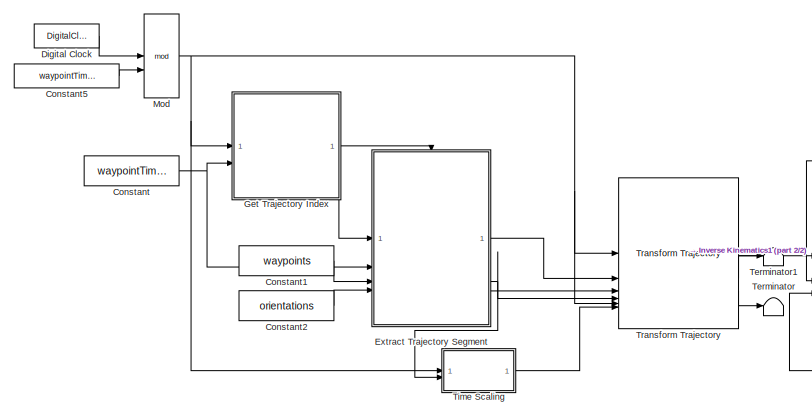
[diagram: Trajectory with Time and Trajectory Scaling - part 1/2, left side, full height]
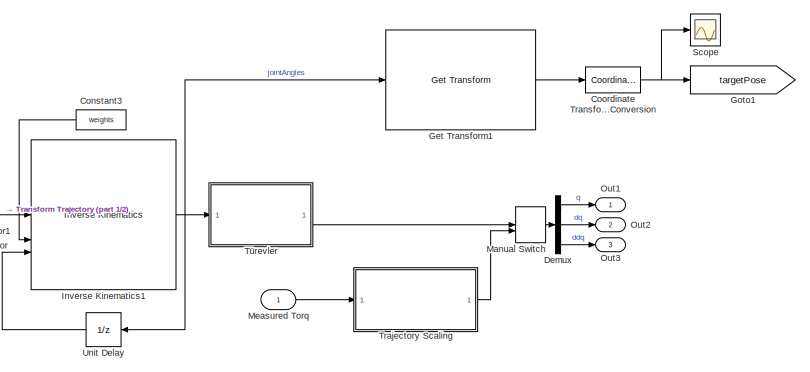
[diagram: Trajectory with Time and Trajectory Scaling - part 2/2, right side, full height]
BLOCK [SubSystem] Trajectory with Time and Trajectory Scaling
BLOCK [Constant] Trajectory with Time and Trajectory Scaling/Constant
  Value = waypointTimes
BLOCK [Constant] Trajectory with Time and Trajectory Scaling/Constant1
  Value = waypoints
BLOCK [Constant] Trajectory with Time and Trajectory Scaling/Constant2
  Value = orientations
BLOCK [Constant] Trajectory with Time and Trajectory Scaling/Constant3
  NameLocation = top
  Value = weights
  VectorParams1D = off
BLOCK [Constant] Trajectory with Time and Trajectory Scaling/Constant5
  Value = waypointTimes(end)
BLOCK [Reference] Trajectory with Time and Trajectory Scaling/Coordinate Transformation Conversion  REF=robotcorelib/Coordinate Transformation Conversion
  LibrarySourceBlock = navlib/Utilities/Coordinate Transformation Conversion
  SourceBlock = robotcorelib/Coordinate Transformation Conversion
  SourceType = robotics.slcore.internal.block.CoordinateTransformationConversion
BLOCK [Demux] Trajectory with Time and Trajectory Scaling/Demux
  Outputs = 3
BLOCK [DigitalClock] Trajectory with Time and Trajectory Scaling/Digital Clock
  SampleTime = ts
BLOCK [SubSystem] Trajectory with Time and Trajectory Scaling/Extract Trajectory Segment
BLOCK [EnablePort] Trajectory with Time and Trajectory Scaling/Extract Trajectory Segment/Enable
  PropagateVarSize = During execution
BLOCK [SubSystem] Trajectory with Time and Trajectory Scaling/Extract Trajectory Segment/MATLAB Function
  ErrorFcn = Stateflow.Translate.translate
  PermitHierarchicalResolution = ExplicitOnly
  SFBlockType = MATLAB Function
  TreatAsAtomicUnit = on
BLOCK [Demux] Trajectory with Time and Trajectory Scaling/Extract Trajectory Segment/MATLAB Function/ Demux 
  Outputs = 1
BLOCK [S-Function] Trajectory with Time and Trajectory Scaling/Extract Trajectory Segment/MATLAB Function/ SFunction 
  EnableBusSupport = on
  FunctionName = sf_sfun
  PortCounts = [4 4]
  SFcnIsStateOwnerBlock = off
  SFunctionDeploymentMode = off
  Tag = Stateflow S-Function 2
BLOCK [Terminator] Trajectory with Time and Trajectory Scaling/Extract Trajectory Segment/MATLAB Function/ Terminator 
BLOCK [Outport] Trajectory with Time and Trajectory Scaling/Extract Trajectory Segment/MATLAB Function/T0
  VectorParamsAs1DForOutWhenUnconnected = off
BLOCK [Outport] Trajectory with Time and Trajectory Scaling/Extract Trajectory Segment/MATLAB Function/Tf
  Port = 2
  VectorParamsAs1DForOutWhenUnconnected = off
BLOCK [Inport] Trajectory with Time and Trajectory Scaling/Extract Trajectory Segment/MATLAB Function/orientations
  Port = 4
BLOCK [Inport] Trajectory with Time and Trajectory Scaling/Extract Trajectory Segment/MATLAB Function/segIdx
BLOCK [Outport] Trajectory with Time and Trajectory Scaling/Extract Trajectory Segment/MATLAB Function/timeInterval
  Port = 3
  VectorParamsAs1DForOutWhenUnconnected = off
BLOCK [Inport] Trajectory with Time and Trajectory Scaling/Extract Trajectory Segment/MATLAB Function/waypointTimes
  Port = 2
BLOCK [Inport] Trajectory with Time and Trajectory Scaling/Extract Trajectory Segment/MATLAB Function/waypoints
  Port = 3
BLOCK [Outport] Trajectory with Time and Trajectory Scaling/Extract Trajectory Segment/T0
  VectorParamsAs1DForOutWhenUnconnected = off
BLOCK [Outport] Trajectory with Time and Trajectory Scaling/Extract Trajectory Segment/Tf
  Port = 2
  VectorParamsAs1DForOutWhenUnconnected = off
BLOCK [Inport] Trajectory with Time and Trajectory Scaling/Extract Trajectory Segment/orientations
  Port = 4
BLOCK [Inport] Trajectory with Time and Trajectory Scaling/Extract Trajectory Segment/segIdx
BLOCK [Outport] Trajectory with Time and Trajectory Scaling/Extract Trajectory Segment/timeInterval
  Port = 3
  VectorParamsAs1DForOutWhenUnconnected = off
BLOCK [Inport] Trajectory with Time and Trajectory Scaling/Extract Trajectory Segment/waypointTimes
  Port = 2
BLOCK [Inport] Trajectory with Time and Trajectory Scaling/Extract Trajectory Segment/waypoints
  Port = 3
BLOCK [SubSystem] Trajectory with Time and Trajectory Scaling/Get Trajectory Index
  ErrorFcn = Stateflow.Translate.translate
  PermitHierarchicalResolution = ExplicitOnly
  SFBlockType = MATLAB Function
  TreatAsAtomicUnit = on
BLOCK [Demux] Trajectory with Time and Trajectory Scaling/Get Trajectory Index/ Demux 
  Outputs = 1
BLOCK [S-Function] Trajectory with Time and Trajectory Scaling/Get Trajectory Index/ SFunction 
  EnableBusSupport = on
  FunctionName = sf_sfun
  PortCounts = [2 3]
  SFcnIsStateOwnerBlock = off
  SFunctionDeploymentMode = off
  Tag = Stateflow S-Function 1
BLOCK [Terminator] Trajectory with Time and Trajectory Scaling/Get Trajectory Index/ Terminator 
BLOCK [Outport] Trajectory with Time and Trajectory Scaling/Get Trajectory Index/hasChanged
  VectorParamsAs1DForOutWhenUnconnected = off
BLOCK [Outport] Trajectory with Time and Trajectory Scaling/Get Trajectory Index/segIdx
  Port = 2
  VectorParamsAs1DForOutWhenUnconnected = off
BLOCK [Inport] Trajectory with Time and Trajectory Scaling/Get Trajectory Index/t
BLOCK [Inport] Trajectory with Time and Trajectory Scaling/Get Trajectory Index/waypointTimes
  Port = 2
BLOCK [Reference] Trajectory with Time and Trajectory Scaling/Get Transform1  REF=robotmaniplib/Get Transform
  SourceBlock = robotmaniplib/Get Transform
  SourceType = Get Transform
BLOCK [Goto] Trajectory with Time and Trajectory Scaling/Goto1
  GotoTag = targetPose
  TagVisibility = global
BLOCK [Reference] Trajectory with Time and Trajectory Scaling/Inverse Kinematics1  REF=robotmaniplib/Inverse Kinematics
  SourceBlock = robotmaniplib/Inverse Kinematics
  SourceType = Inverse Kinematics
BLOCK [ManualSwitch] Trajectory with Time and Trajectory Scaling/Manual Switch
  CurrentSetting = 0
BLOCK [Inport] Trajectory with Time and Trajectory Scaling/Measured Torq
BLOCK [Math] Trajectory with Time and Trajectory Scaling/Mod
  Operator = mod
  SignedPower = on
BLOCK [Outport] Trajectory with Time and Trajectory Scaling/Out1
BLOCK [Outport] Trajectory with Time and Trajectory Scaling/Out2
  Port = 2
BLOCK [Outport] Trajectory with Time and Trajectory Scaling/Out3
  Port = 3
BLOCK [Scope] Trajectory with Time and Trajectory Scaling/Scope
  Floating = off
  NumInputPorts = 1
  ScopeSpecificationString = Simulink.scopes.TimeScopeBlockCfg('CurrentConfiguration', extmgr.ConfigurationSet(extmgr.Configuration('Core','General UI',true),extmgr.Configuration('Core','Source UI',true),extmgr.Configuration('Sources','WiredSimulink',true,'DataLoggingVariableName','ScopeData1'),extmgr.Configuration('Visuals','Time Domain',true,'SerializedDisplays',{struct('MinYLimReal','-0.29736','MaxYLimReal','0.59626','YLab...<+1413ch>
BLOCK [Terminator] Trajectory with Time and Trajectory Scaling/Terminator
BLOCK [Terminator] Trajectory with Time and Trajectory Scaling/Terminator1
BLOCK [SubSystem] Trajectory with Time and Trajectory Scaling/Time Scaling
BLOCK [Constant] Trajectory with Time and Trajectory Scaling/Time Scaling/Constant
  Value = [0 1]
  VectorParams1D = off
BLOCK [Constant] Trajectory with Time and Trajectory Scaling/Time Scaling/Constant1
  Value = [0 1]
  VectorParams1D = off
BLOCK [Constant] Trajectory with Time and Trajectory Scaling/Time Scaling/Constant2
  Value = [0 0]
  VectorParams1D = off
BLOCK [Constant] Trajectory with Time and Trajectory Scaling/Time Scaling/Constant4
  Value = [0 0]
  VectorParams1D = off
BLOCK [Demux] Trajectory with Time and Trajectory Scaling/Time Scaling/Demux
  Outputs = 2
BLOCK [ManualSwitch] Trajectory with Time and Trajectory Scaling/Time Scaling/Manual Switch
  CurrentSetting = 0
BLOCK [Mux] Trajectory with Time and Trajectory Scaling/Time Scaling/Mux
  DisplayOption = bar
  Inputs = 3
BLOCK [Mux] Trajectory with Time and Trajectory Scaling/Time Scaling/Mux1
  DisplayOption = bar
  Inputs = 3
BLOCK [Reference] Trajectory with Time and Trajectory Scaling/Time Scaling/Polynomial Trajectory  REF=robotcorelib/Polynomial Trajectory
  SourceBlock = robotcorelib/Polynomial Trajectory
  SourceType = robotics.slcore.internal.block.PolyTrajSys
BLOCK [Scope] Trajectory with Time and Trajectory Scaling/Time Scaling/Scope
  Floating = off
  NumInputPorts = 2
  ScopeSpecificationString = Simulink.scopes.TimeScopeBlockCfg('CurrentConfiguration', extmgr.ConfigurationSet(extmgr.Configuration('Core','General UI',true),extmgr.Configuration('Core','Source UI',true),extmgr.Configuration('Sources','WiredSimulink',true,'DataLoggingVariableName','ScopeData1'),extmgr.Configuration('Visuals','Time Domain',true,'SerializedDisplays',{struct('MinYLimReal','-0.00051','MaxYLimReal','0.00457','YLab...<+1433ch>
BLOCK [Sum] Trajectory with Time and Trajectory Scaling/Time Scaling/Subtract
  IconShape = rectangular
  Inputs = +-
BLOCK [Sum] Trajectory with Time and Trajectory Scaling/Time Scaling/Subtract1
  IconShape = rectangular
  Inputs = -+
BLOCK [Reference] Trajectory with Time and Trajectory Scaling/Time Scaling/Trapezoidal Velocity Profile Trajectory  REF=robotcorelib/Trapezoidal Velocity Profile Trajectory
  SourceBlock = robotcorelib/Trapezoidal Velocity Profile Trajectory
  SourceType = robotics.slcore.internal.block.TrapVelTrajSys
BLOCK [Inport] Trajectory with Time and Trajectory Scaling/Time Scaling/t
BLOCK [Inport] Trajectory with Time and Trajectory Scaling/Time Scaling/timeInterval
  Port = 2
BLOCK [Outport] Trajectory with Time and Trajectory Scaling/Time Scaling/tsVec
  VectorParamsAs1DForOutWhenUnconnected = off
BLOCK [SubSystem] Trajectory with Time and Trajectory Scaling/Trajectory Scaling
BLOCK [Clock] Trajectory with Time and Trajectory Scaling/Trajectory Scaling/Clock
BLOCK [SubSystem] Trajectory with Time and Trajectory Scaling/Trajectory Scaling/Clock with Switch
BLOCK [Constant] Trajectory with Time and Trajectory Scaling/Trajectory Scaling/Clock with Switch/Constant1
  Value = tStart
BLOCK [If] Trajectory with Time and Trajectory Scaling/Trajectory Scaling/Clock with Switch/If
  IfExpression = u1 >u2
  NumInputs = 2
  ShowElse = off
BLOCK [SubSystem] Trajectory with Time and Trajectory Scaling/Trajectory Scaling/Clock with Switch/If Action Subsystem
  TreatAsAtomicUnit = on
BLOCK [ActionPort] Trajectory with Time and Trajectory Scaling/Trajectory Scaling/Clock with Switch/If Action Subsystem/Action Port
  ActionPortLabel = if(u1 >u2)
BLOCK [Sum] Trajectory with Time and Trajectory Scaling/Trajectory Scaling/Clock with Switch/If Action Subsystem/Add
  IconShape = rectangular
  Inputs = +-
BLOCK [Inport] Trajectory with Time and Trajectory Scaling/Trajectory Scaling/Clock with Switch/If Action Subsystem/In1
BLOCK [Inport] Trajectory with Time and Trajectory Scaling/Trajectory Scaling/Clock with Switch/If Action Subsystem/In2
  Port = 2
BLOCK [Outport] Trajectory with Time and Trajectory Scaling/Trajectory Scaling/Clock with Switch/If Action Subsystem/Out1
  VectorParamsAs1DForOutWhenUnconnected = off
BLOCK [Scope] Trajectory with Time and Trajectory Scaling/Trajectory Scaling/Clock with Switch/Scope
  Floating = off
  NumInputPorts = 1
  ScopeSpecificationString = Simulink.scopes.TimeScopeBlockCfg('CurrentConfiguration', extmgr.ConfigurationSet(extmgr.Configuration('Core','General UI',true),extmgr.Configuration('Core','Source UI',true),extmgr.Configuration('Sources','WiredSimulink',true,'DataLoggingVariableName','ScopeData1'),extmgr.Configuration('Visuals','Time Domain',true,'SerializedDisplays',{struct('MinYLimReal','-100.00000','MaxYLimReal','900.00000','...<+1455ch>
BLOCK [Inport] Trajectory with Time and Trajectory Scaling/Trajectory Scaling/Clock with Switch/t_In
BLOCK [Outport] Trajectory with Time and Trajectory Scaling/Trajectory Scaling/Clock with Switch/t_Out
  VectorParamsAs1DForOutWhenUnconnected = off
BLOCK [Constant] Trajectory with Time and Trajectory Scaling/Trajectory Scaling/Constant4
BLOCK [Delay] Trajectory with Time and Trajectory Scaling/Trajectory Scaling/Delay
  DelayLength = 1
  InputPortMap = u0
  NameLocation = top
BLOCK [From] Trajectory with Time and Trajectory Scaling/Trajectory Scaling/From
  GotoTag = t_Origin
  TagVisibility = global
BLOCK [From] Trajectory with Time and Trajectory Scaling/Trajectory Scaling/From1
  GotoTag = t_Trajectory_Scaling
  TagVisibility = global
BLOCK [Goto] Trajectory with Time and Trajectory Scaling/Trajectory Scaling/Goto
  GotoTag = t_Origin
  TagVisibility = global
BLOCK [Goto] Trajectory with Time and Trajectory Scaling/Trajectory Scaling/Goto2
  GotoTag = t_Trajectory_Scaling
  TagVisibility = global
BLOCK [Inport] Trajectory with Time and Trajectory Scaling/Trajectory Scaling/Measured Torq
BLOCK [Mux] Trajectory with Time and Trajectory Scaling/Trajectory Scaling/Mux
  DisplayOption = bar
  Inputs = 3
BLOCK [Outport] Trajectory with Time and Trajectory Scaling/Trajectory Scaling/Out1
BLOCK [Reference] Trajectory with Time and Trajectory Scaling/Trajectory Scaling/Polynomial Trajectory  REF=robotcorelib/Polynomial Trajectory
  LibrarySourceBlock = robotutilslib/Polynomial Trajectory
  SourceBlock = robotcorelib/Polynomial Trajectory
  SourceType = robotics.slcore.internal.block.PolyTrajSys
BLOCK [Saturate] Trajectory with Time and Trajectory Scaling/Trajectory Scaling/Saturation
  LowerLimit = 0
  UpperLimit = tDuration
BLOCK [Saturate] Trajectory with Time and Trajectory Scaling/Trajectory Scaling/Saturation1
  LowerLimit = 0
  UpperLimit = tDuration
BLOCK [Scope] Trajectory with Time and Trajectory Scaling/Trajectory Scaling/Scope
  Floating = off
  NumInputPorts = 1
  ScopeSpecificationString = Simulink.scopes.TimeScopeBlockCfg('CurrentConfiguration', extmgr.ConfigurationSet(extmgr.Configuration('Core','General UI',true),extmgr.Configuration('Core','Source UI',true),extmgr.Configuration('Sources','WiredSimulink',true,'DataLoggingVariableName','ScopeData1'),extmgr.Configuration('Visuals','Time Domain',true),extmgr.Configuration('Tools','Plot Navigation',true),extmgr.Configuration('Tools',...<+40ch>
BLOCK [Scope] Trajectory with Time and Trajectory Scaling/Trajectory Scaling/Scope1
  Floating = off
  NumInputPorts = 1
  ScopeSpecificationString = Simulink.scopes.TimeScopeBlockCfg('CurrentConfiguration', extmgr.ConfigurationSet(extmgr.Configuration('Core','General UI',true),extmgr.Configuration('Core','Source UI',true),extmgr.Configuration('Sources','WiredSimulink',true,'DataLoggingVariableName','ScopeData5'),extmgr.Configuration('Visuals','Time Domain',true,'SerializedDisplays',{struct('MinYLimReal','-1.33282','MaxYLimReal','1.89342','YLab...<+1887ch>
BLOCK [SubSystem] Trajectory with Time and Trajectory Scaling/Trajectory Scaling/Subsystem
BLOCK [Constant] Trajectory with Time and Trajectory Scaling/Trajectory Scaling/Subsystem/Constant4
  Value = zeros(6,6)
BLOCK [Delay] Trajectory with Time and Trajectory Scaling/Trajectory Scaling/Subsystem/Delay
  DelayLength = 1
  InputPortMap = u0
BLOCK [Delay] Trajectory with Time and Trajectory Scaling/Trajectory Scaling/Subsystem/Delay1
  DelayLength = 1
  InputPortMap = u0
  NameLocation = top
BLOCK [Product] Trajectory with Time and Trajectory Scaling/Trajectory Scaling/Subsystem/Divide
  Inputs = **
BLOCK [Reference] Trajectory with Time and Trajectory Scaling/Trajectory Scaling/Subsystem/Inverse Dynamics  REF=robotmaniplib/Inverse Dynamics
  SourceBlock = robotmaniplib/Inverse Dynamics
  SourceType = Inverse Dynamics
BLOCK [Inport] Trajectory with Time and Trajectory Scaling/Trajectory Scaling/Subsystem/Measured Torq
  Port = 2
BLOCK [Reference] Trajectory with Time and Trajectory Scaling/Trajectory Scaling/Subsystem/Polynomial Trajectory  REF=robotcorelib/Polynomial Trajectory
  LibrarySourceBlock = robotutilslib/Polynomial Trajectory
  SourceBlock = robotcorelib/Polynomial Trajectory
  SourceType = robotics.slcore.internal.block.PolyTrajSys
BLOCK [Sum] Trajectory with Time and Trajectory Scaling/Trajectory Scaling/Subsystem/Subtract
  IconShape = rectangular
  Inputs = +-
BLOCK [Sum] Trajectory with Time and Trajectory Scaling/Trajectory Scaling/Subsystem/Subtract1
  IconShape = rectangular
BLOCK [Sum] Trajectory with Time and Trajectory Scaling/Trajectory Scaling/Subsystem/Sum
  IconShape = rectangular
  Inputs = +-
BLOCK [Terminator] Trajectory with Time and Trajectory Scaling/Trajectory Scaling/Subsystem/Terminator2
BLOCK [SubSystem] Trajectory with Time and Trajectory Scaling/Trajectory Scaling/Subsystem/Trajectory Scaling Implementation
  ErrorFcn = Stateflow.Translate.translate
  PermitHierarchicalResolution = ExplicitOnly
  SFBlockType = MATLAB Function
  TreatAsAtomicUnit = on
BLOCK [Demux] Trajectory with Time and Trajectory Scaling/Trajectory Scaling/Subsystem/Trajectory Scaling Implementation/ Demux 
  Outputs = 1
BLOCK [S-Function] Trajectory with Time and Trajectory Scaling/Trajectory Scaling/Subsystem/Trajectory Scaling Implementation/ SFunction 
  EnableBusSupport = on
  FunctionName = sf_sfun
  PortCounts = [2 3]
  SFcnIsStateOwnerBlock = off
  SFunctionDeploymentMode = off
  Tag = Stateflow S-Function 6
BLOCK [Terminator] Trajectory with Time and Trajectory Scaling/Trajectory Scaling/Subsystem/Trajectory Scaling Implementation/ Terminator 
BLOCK [Inport] Trajectory with Time and Trajectory Scaling/Trajectory Scaling/Subsystem/Trajectory Scaling Implementation/dqd
  Port = 2
BLOCK [Inport] Trajectory with Time and Trajectory Scaling/Trajectory Scaling/Subsystem/Trajectory Scaling Implementation/externalTorque
BLOCK [Outport] Trajectory with Time and Trajectory Scaling/Trajectory Scaling/Subsystem/Trajectory Scaling Implementation/fs
  Port = 2
  VectorParamsAs1DForOutWhenUnconnected = off
BLOCK [Outport] Trajectory with Time and Trajectory Scaling/Trajectory Scaling/Subsystem/Trajectory Scaling Implementation/psi
  VectorParamsAs1DForOutWhenUnconnected = off
BLOCK [StateSpace] Trajectory with Time and Trajectory Scaling/Trajectory Scaling/Subsystem/low pass filter
  A = -50*eye(5)
  B = 50*eye(5)
  C = eye(5)
  D = zeros(5,5)
  InitialCondition = zeros(5,1)
BLOCK [Outport] Trajectory with Time and Trajectory Scaling/Trajectory Scaling/Subsystem/t_mod
BLOCK [Inport] Trajectory with Time and Trajectory Scaling/Trajectory Scaling/Subsystem/t_mod_delayed
  NameLocation = top
  Port = 3
BLOCK [Inport] Trajectory with Time and Trajectory Scaling/Trajectory Scaling/Subsystem/time
BLOCK [Switch] Trajectory with Time and Trajectory Scaling/Trajectory Scaling/Switch
  Criteria = u2 > Threshold
  InputSameDT = off
  SaturateOnIntegerOverflow = off
  Threshold = 1
BLOCK [ToWorkspace] Trajectory with Time and Trajectory Scaling/Trajectory Scaling/To Workspace
  FixptAsFi = on
  MaxDataPoints = inf
  SampleTime = -1
  VariableName = zaman_ts
BLOCK [Reference] Trajectory with Time and Trajectory Scaling/Transform Trajectory  REF=robotcorelib/Transform Trajectory
  SourceBlock = robotcorelib/Transform Trajectory
  SourceType = robotics.slcore.internal.block.TransformTrajSys
BLOCK [SubSystem] Trajectory with Time and Trajectory Scaling/Türevler
BLOCK [Reference] Trajectory with Time and Trajectory Scaling/Türevler/Discrete Derivative  REF=simulink/Discrete/Discrete Derivative
  SourceBlock = simulink/Discrete/Discrete Derivative
  SourceType = Discrete Derivative
BLOCK [Reference] Trajectory with Time and Trajectory Scaling/Türevler/Discrete Derivative1  REF=simulink/Discrete/Discrete Derivative
  SourceBlock = simulink/Discrete/Discrete Derivative
  SourceType = Discrete Derivative
BLOCK [DiscreteFilter] Trajectory with Time and Trajectory Scaling/Türevler/Discrete Filter
  Denominator = [1]
  InitialStates = repmat(q0',5,1)
  InputPortMap = u0
  Numerator = ones(1,6)*1/6
BLOCK [Mux] Trajectory with Time and Trajectory Scaling/Türevler/Mux
  DisplayOption = bar
  Inputs = 3
BLOCK [Outport] Trajectory with Time and Trajectory Scaling/Türevler/Out1
BLOCK [RateTransition] Trajectory with Time and Trajectory Scaling/Türevler/Rate Transition
BLOCK [Inport] Trajectory with Time and Trajectory Scaling/Türevler/jointAngles
BLOCK [UnitDelay] Trajectory with Time and Trajectory Scaling/Unit Delay
  HasFrameUpgradeWarning = on
  InitialCondition = q0
  SampleTime = -1
ANNOTATION Computed Torque Controller: dqe
ANNOTATION Computed Torque Controller: qe
ANNOTATION Computed Torque Controller: MassMatrix(ddqd - Kd*dqe - Kp*qe)
ANNOTATION Computed Torque Controller: Velocity Product Torque + Gravity Torque
ANNOTATION Computed Torque Controller: Computed Torque Controller
ANNOTATION Physical Model: Dinamik Model
ANNOTATION Physical Model: Temas Modeli
ANNOTATION Physical Model/Temas Mekaniği, Düzlemsel Nesne ve Görselleştirme: Contact force based on a linear spring-damper model
ANNOTATION Physical Model/Temas Mekaniği, Düzlemsel Nesne ve Görselleştirme: Temas Mekaniği
LINE Clock1:1 -> Polynomial Trajectory:1
LINE Clock2:1 -> Trajectory Generator1:1
LINE Computed Torque Controller/Abs:1 -> Computed Torque Controller/Product1:1
LINE Computed Torque Controller/Add1:1 -> Computed Torque Controller/Add5:2
NET Computed Torque Controller/Add2:1 -> Computed Torque Controller/Kp:1, Computed Torque Controller/Sum:1
NET Computed Torque Controller/Add3:1 -> Computed Torque Controller/Kd:1, Computed Torque Controller/Sum:2
LINE Computed Torque Controller/Add4:1 -> Computed Torque Controller/Add:1
LINE Computed Torque Controller/Add5:1 -> Computed Torque Controller/Saturation:1
LINE Computed Torque Controller/Add:1 -> Computed Torque Controller/Product:2
LINE Computed Torque Controller/Clock:1 -> Computed Torque Controller/Product1:2
LINE Computed Torque Controller/Desired Acceleration:1 -> Computed Torque Controller/Add:2
LINE Computed Torque Controller/Desired Configuration:1 -> Computed Torque Controller/Add2:2
LINE Computed Torque Controller/Desired Velocity:1 -> Computed Torque Controller/Add3:2
LINE Computed Torque Controller/Gravity Torque:1 -> Computed Torque Controller/Add1:1
LINE Computed Torque Controller/Integrator:1 -> Computed Torque Controller/Sum1:1
LINE Computed Torque Controller/Joint Space Mass Matrix:1 -> Computed Torque Controller/Product:1
LINE Computed Torque Controller/Kd:1 -> Computed Torque Controller/Add4:2
LINE Computed Torque Controller/Kp:1 -> Computed Torque Controller/Add4:1
NET Computed Torque Controller/Measured Configuration:1 -> Computed Torque Controller/Add2:1, Computed Torque Controller/Gravity Torque:1, Computed Torque Controller/Joint Space Mass Matrix:1, Computed Torque Controller/Velocity Product Torque:1
NET Computed Torque Controller/Measured Velocities:1 -> Computed Torque Controller/Add3:1, Computed Torque Controller/Velocity Product Torque:2
LINE Computed Torque Controller/Product1:1 -> Computed Torque Controller/Integrator:1
LINE Computed Torque Controller/Product:1 -> Computed Torque Controller/Add5:1
LINE Computed Torque Controller/Saturation:1 -> Computed Torque Controller/Applied Torque:1
LINE Computed Torque Controller/Sum1:1 -> Computed Torque Controller/To Workspace:1
LINE Computed Torque Controller/Sum:1 -> Computed Torque Controller/Abs:1
LINE Computed Torque Controller/Velocity Product Torque:1 -> Computed Torque Controller/Add1:2
NET Computed Torque Controller:1 -> Physical Model:1, Scope:1, To Workspace3:1
LINE Coordinate Transformation Conversion:1 -> Goto:1
NET From1:1 -> Display1:1, Scope3:2, To Workspace:1
NET From:1 -> Display:1, Scope3:1, To Workspace1:1
LINE Get Transform1:1 -> Coordinate Transformation Conversion:1
LINE Physical Model/Applied Torque:1 -> Physical Model/Dinamik Model:1
LINE Physical Model/Constant:1 -> Physical Model/Temas Mekaniği, Düzlemsel Nesne ve Görselleştirme:1
NET Physical Model/Dinamik Model/Gain:1 -> Physical Model/Dinamik Model/Scope1:1, Physical Model/Dinamik Model/Sum1:2
LINE Physical Model/Dinamik Model/PSS Q_elbow_joint:1 -> Physical Model/Dinamik Model/goQ_joint_3:1
LINE Physical Model/Dinamik Model/PSS Q_shoulder_lift_joint:1 -> Physical Model/Dinamik Model/goQ_joint_2:1
LINE Physical Model/Dinamik Model/PSS Q_shoulder_pan_joint:1 -> Physical Model/Dinamik Model/goQ_joint_1:1
LINE Physical Model/Dinamik Model/PSS Q_wrist_1_joint:1 -> Physical Model/Dinamik Model/goQ_joint_4:1
LINE Physical Model/Dinamik Model/PSS Q_wrist_2_joint:1 -> Physical Model/Dinamik Model/goQ_joint_5:1
LINE Physical Model/Dinamik Model/PSS Qddot_elbow_joint:1 -> Physical Model/Dinamik Model/goQddot_joint_3:1
LINE Physical Model/Dinamik Model/PSS Qddot_shoulder_lift_joint:1 -> Physical Model/Dinamik Model/goQddot_joint_2:1
LINE Physical Model/Dinamik Model/PSS Qddot_shoulder_pan_joint1:1 -> Physical Model/Dinamik Model/gotorq_joint_1:1
LINE Physical Model/Dinamik Model/PSS Qddot_shoulder_pan_joint2:1 -> Physical Model/Dinamik Model/gotorq_joint_2:1
LINE Physical Model/Dinamik Model/PSS Qddot_shoulder_pan_joint3:1 -> Physical Model/Dinamik Model/gotorq_joint_3:1
LINE Physical Model/Dinamik Model/PSS Qddot_shoulder_pan_joint4:1 -> Physical Model/Dinamik Model/gotorq_joint_4:1
LINE Physical Model/Dinamik Model/PSS Qddot_shoulder_pan_joint5:1 -> Physical Model/Dinamik Model/gotorq_joint_5:1
LINE Physical Model/Dinamik Model/PSS Qddot_shoulder_pan_joint:1 -> Physical Model/Dinamik Model/goQddot_joint_1:1
LINE Physical Model/Dinamik Model/PSS Qddot_wrist_1_joint:1 -> Physical Model/Dinamik Model/goQddot_joint_4:1
LINE Physical Model/Dinamik Model/PSS Qddot_wrist_2_joint:1 -> Physical Model/Dinamik Model/goQddot_joint_5:1
LINE Physical Model/Dinamik Model/PSS Qdot_elbow_joint:1 -> Physical Model/Dinamik Model/goQdot_joint_3:1
LINE Physical Model/Dinamik Model/PSS Qdot_shoulder_lift_joint:1 -> Physical Model/Dinamik Model/goQdot_joint_2:1
LINE Physical Model/Dinamik Model/PSS Qdot_shoulder_pan_joint:1 -> Physical Model/Dinamik Model/goQdot_joint_1:1
LINE Physical Model/Dinamik Model/PSS Qdot_wrist_1_joint:1 -> Physical Model/Dinamik Model/goQdot_joint_4:1
LINE Physical Model/Dinamik Model/PSS Qdot_wrist_2_joint:1 -> Physical Model/Dinamik Model/goQdot_joint_5:1
LINE Physical Model/Dinamik Model/Q_State Mux:1 -> Physical Model/Dinamik Model/Q_out:1
LINE Physical Model/Dinamik Model/Qdot_State Mux1:1 -> Physical Model/Dinamik Model/Qddot_out:1
LINE Physical Model/Dinamik Model/Qdot_State Mux2:1 -> Physical Model/Dinamik Model/Sum:1
LINE Physical Model/Dinamik Model/Qdot_State Mux:1 -> Physical Model/Dinamik Model/Qdot_out:1
LINE Physical Model/Dinamik Model/Sum1:1 -> Physical Model/Dinamik Model/tau_Demux:1
LINE Physical Model/Dinamik Model/Sum:1 -> Physical Model/Dinamik Model/Torq_out:1
LINE Physical Model/Dinamik Model/fromQ_joint_1:1 -> Physical Model/Dinamik Model/Q_State Mux:1
LINE Physical Model/Dinamik Model/fromQ_joint_2:1 -> Physical Model/Dinamik Model/Q_State Mux:2
LINE Physical Model/Dinamik Model/fromQ_joint_3:1 -> Physical Model/Dinamik Model/Q_State Mux:3
LINE Physical Model/Dinamik Model/fromQ_joint_4:1 -> Physical Model/Dinamik Model/Q_State Mux:4
LINE Physical Model/Dinamik Model/fromQ_joint_5:1 -> Physical Model/Dinamik Model/Q_State Mux:5
LINE Physical Model/Dinamik Model/fromQddot_joint_1:1 -> Physical Model/Dinamik Model/Qdot_State Mux1:1
LINE Physical Model/Dinamik Model/fromQddot_joint_2:1 -> Physical Model/Dinamik Model/Qdot_State Mux1:2
LINE Physical Model/Dinamik Model/fromQddot_joint_3:1 -> Physical Model/Dinamik Model/Qdot_State Mux1:3
LINE Physical Model/Dinamik Model/fromQddot_joint_4:1 -> Physical Model/Dinamik Model/Qdot_State Mux1:4
LINE Physical Model/Dinamik Model/fromQddot_joint_5:1 -> Physical Model/Dinamik Model/Qdot_State Mux1:5
LINE Physical Model/Dinamik Model/fromQdot_joint_1:1 -> Physical Model/Dinamik Model/Qdot_State Mux:1
LINE Physical Model/Dinamik Model/fromQdot_joint_2:1 -> Physical Model/Dinamik Model/Qdot_State Mux:2
LINE Physical Model/Dinamik Model/fromQdot_joint_3:1 -> Physical Model/Dinamik Model/Qdot_State Mux:3
LINE Physical Model/Dinamik Model/fromQdot_joint_4:1 -> Physical Model/Dinamik Model/Qdot_State Mux:4
LINE Physical Model/Dinamik Model/fromQdot_joint_5:1 -> Physical Model/Dinamik Model/Qdot_State Mux:5
LINE Physical Model/Dinamik Model/fromtau_joint_1:1 -> Physical Model/Dinamik Model/SPS tau_shoulder_pan_joint:1
LINE Physical Model/Dinamik Model/fromtau_joint_2:1 -> Physical Model/Dinamik Model/SPS tau_shoulder_lift_joint:1
LINE Physical Model/Dinamik Model/fromtau_joint_3:1 -> Physical Model/Dinamik Model/SPS tau_elbow_joint:1
LINE Physical Model/Dinamik Model/fromtau_joint_4:1 -> Physical Model/Dinamik Model/SPS tau_wrist_1_joint:1
LINE Physical Model/Dinamik Model/fromtau_joint_5:1 -> Physical Model/Dinamik Model/SPS tau_wrist_2_joint:1
LINE Physical Model/Dinamik Model/fromtorq_joint_1:1 -> Physical Model/Dinamik Model/Qdot_State Mux2:1
LINE Physical Model/Dinamik Model/fromtorq_joint_2:1 -> Physical Model/Dinamik Model/Qdot_State Mux2:2
LINE Physical Model/Dinamik Model/fromtorq_joint_3:1 -> Physical Model/Dinamik Model/Qdot_State Mux2:3
LINE Physical Model/Dinamik Model/fromtorq_joint_4:1 -> Physical Model/Dinamik Model/Qdot_State Mux2:4
LINE Physical Model/Dinamik Model/fromtorq_joint_5:1 -> Physical Model/Dinamik Model/Qdot_State Mux2:5
NET Physical Model/Dinamik Model/reaction torque:1 -> Physical Model/Dinamik Model/Gain:1, Physical Model/Dinamik Model/Sum:2
LINE Physical Model/Dinamik Model/tau_Demux:1 -> Physical Model/Dinamik Model/gotau_joint_1:1
LINE Physical Model/Dinamik Model/tau_Demux:2 -> Physical Model/Dinamik Model/gotau_joint_2:1
LINE Physical Model/Dinamik Model/tau_Demux:3 -> Physical Model/Dinamik Model/gotau_joint_3:1
LINE Physical Model/Dinamik Model/tau_Demux:4 -> Physical Model/Dinamik Model/gotau_joint_4:1
LINE Physical Model/Dinamik Model/tau_Demux:5 -> Physical Model/Dinamik Model/gotau_joint_5:1
LINE Physical Model/Dinamik Model/tau_in:1 -> Physical Model/Dinamik Model/Sum1:1
NET Physical Model/Dinamik Model:1 -> Physical Model/Measured Configuration:1, Physical Model/Temas Mekaniği, Düzlemsel Nesne ve Görselleştirme:4
LINE Physical Model/Dinamik Model:2 -> Physical Model/Measured Velocities:1
LINE Physical Model/Dinamik Model:3 -> Physical Model/Measured Acc.:1
LINE Physical Model/Dinamik Model:4 -> Physical Model/Measured Torq:1
LINE Physical Model/PS-Simulink Converter29:1 -> Physical Model/Temas Mekaniği, Düzlemsel Nesne ve Görselleştirme:2
LINE Physical Model/PS-Simulink Converter30:1 -> Physical Model/Temas Mekaniği, Düzlemsel Nesne ve Görselleştirme:3
LINE Physical Model/Temas Mekaniği, Düzlemsel Nesne ve Görselleştirme/Constant2:1 -> Physical Model/Temas Mekaniği, Düzlemsel Nesne ve Görselleştirme/Subtract2:2
LINE Physical Model/Temas Mekaniği, Düzlemsel Nesne ve Görselleştirme/Contact Model:1 -> Physical Model/Temas Mekaniği, Düzlemsel Nesne ve Görselleştirme/reaction torque:1
LINE Physical Model/Temas Mekaniği, Düzlemsel Nesne ve Görselleştirme/Contact Model:2 -> Physical Model/Temas Mekaniği, Düzlemsel Nesne ve Görselleştirme/reaction force:1
LINE Physical Model/Temas Mekaniği, Düzlemsel Nesne ve Görselleştirme/Damping:1 -> Physical Model/Temas Mekaniği, Düzlemsel Nesne ve Görselleştirme/Contact Model:5
LINE Physical Model/Temas Mekaniği, Düzlemsel Nesne ve Görselleştirme/Get Jacobian:1 -> Physical Model/Temas Mekaniği, Düzlemsel Nesne ve Görselleştirme/Contact Model:3
LINE Physical Model/Temas Mekaniği, Düzlemsel Nesne ve Görselleştirme/Stiffness:1 -> Physical Model/Temas Mekaniği, Düzlemsel Nesne ve Görselleştirme/Contact Model:4
LINE Physical Model/Temas Mekaniği, Düzlemsel Nesne ve Görselleştirme/Subsystem/Constant1:1 -> Physical Model/Temas Mekaniği, Düzlemsel Nesne ve Görselleştirme/Subsystem/Simulink-PS Converter8:1
LINE Physical Model/Temas Mekaniği, Düzlemsel Nesne ve Görselleştirme/Subsystem/Constant3:1 -> Physical Model/Temas Mekaniği, Düzlemsel Nesne ve Görselleştirme/Subsystem/Simulink-PS Converter1:1
LINE Physical Model/Temas Mekaniği, Düzlemsel Nesne ve Görselleştirme/Subsystem/px in:1 -> Physical Model/Temas Mekaniği, Düzlemsel Nesne ve Görselleştirme/Subsystem/Simulink-PS Converter7:1
LINE Physical Model/Temas Mekaniği, Düzlemsel Nesne ve Görselleştirme/Subsystem1/Constant5:1 -> Physical Model/Temas Mekaniği, Düzlemsel Nesne ve Görselleştirme/Subsystem1/Simulink-PS Converter3:1
LINE Physical Model/Temas Mekaniği, Düzlemsel Nesne ve Görselleştirme/Subsystem1/Constant6:1 -> Physical Model/Temas Mekaniği, Düzlemsel Nesne ve Görselleştirme/Subsystem1/Simulink-PS Converter4:1
LINE Physical Model/Temas Mekaniği, Düzlemsel Nesne ve Görselleştirme/Subsystem1/Constant7:1 -> Physical Model/Temas Mekaniği, Düzlemsel Nesne ve Görselleştirme/Subsystem1/Simulink-PS Converter5:1
LINE Physical Model/Temas Mekaniği, Düzlemsel Nesne ve Görselleştirme/Subsystem2/Constant4:1 -> Physical Model/Temas Mekaniği, Düzlemsel Nesne ve Görselleştirme/Subsystem2/Simulink-PS Converter2:1
LINE Physical Model/Temas Mekaniği, Düzlemsel Nesne ve Görselleştirme/Subsystem2/Constant8:1 -> Physical Model/Temas Mekaniği, Düzlemsel Nesne ve Görselleştirme/Subsystem2/Simulink-PS Converter6:1
LINE Physical Model/Temas Mekaniği, Düzlemsel Nesne ve Görselleştirme/Subsystem2/Constant9:1 -> Physical Model/Temas Mekaniği, Düzlemsel Nesne ve Görselleştirme/Subsystem2/Simulink-PS Converter9:1
LINE Physical Model/Temas Mekaniği, Düzlemsel Nesne ve Görselleştirme/Subtract2:1 -> Physical Model/Temas Mekaniği, Düzlemsel Nesne ve Görselleştirme/Subsystem:1
LINE Physical Model/Temas Mekaniği, Düzlemsel Nesne ve Görselleştirme/Subtract:1 -> Physical Model/Temas Mekaniği, Düzlemsel Nesne ve Görselleştirme/Contact Model:1
LINE Physical Model/Temas Mekaniği, Düzlemsel Nesne ve Görselleştirme/endeffectorPos:1 -> Physical Model/Temas Mekaniği, Düzlemsel Nesne ve Görselleştirme/Subtract:1
LINE Physical Model/Temas Mekaniği, Düzlemsel Nesne ve Görselleştirme/endeffectorVel:1 -> Physical Model/Temas Mekaniği, Düzlemsel Nesne ve Görselleştirme/Contact Model:2
NET Physical Model/Temas Mekaniği, Düzlemsel Nesne ve Görselleştirme/low pass filter:1 -> Physical Model/Temas Mekaniği, Düzlemsel Nesne ve Görselleştirme/Scope1:1, Physical Model/Temas Mekaniği, Düzlemsel Nesne ve Görselleştirme/Subtract2:1, Physical Model/Temas Mekaniği, Düzlemsel Nesne ve Görselleştirme/Subtract:2
LINE Physical Model/Temas Mekaniği, Düzlemsel Nesne ve Görselleştirme/objectPos:1 -> Physical Model/Temas Mekaniği, Düzlemsel Nesne ve Görselleştirme/low pass filter:1
LINE Physical Model/Temas Mekaniği, Düzlemsel Nesne ve Görselleştirme/q:1 -> Physical Model/Temas Mekaniği, Düzlemsel Nesne ve Görselleştirme/Get Jacobian:1
LINE Physical Model/Temas Mekaniği, Düzlemsel Nesne ve Görselleştirme:1 -> Physical Model/Dinamik Model:2
NET Physical Model/Temas Mekaniği, Düzlemsel Nesne ve Görselleştirme:2 -> Physical Model/Scope:1, Physical Model/To Workspace:1
NET Physical Model:1 -> Computed Torque Controller:1, Get Transform1:1
LINE Physical Model:2 -> Computed Torque Controller:2
LINE Physical Model:3 -> Terminator1:1
LINE Physical Model:4 -> Trajectory with Time and Trajectory Scaling:1
LINE Polynomial Trajectory:1 -> Scope1:1
LINE Polynomial Trajectory:2 -> Terminator:1
LINE Polynomial Trajectory:3 -> Terminator4:1
LINE Trajectory Generator1/Constant2:1 -> Trajectory Generator1/Coordinate Transformation Conversion:1
LINE Trajectory Generator1/Constant3:1 -> Trajectory Generator1/Inverse Kinematics:2
LINE Trajectory Generator1/Coordinate Transformation Conversion:1 -> Trajectory Generator1/MATLAB Function:1
LINE Trajectory Generator1/In1:1 -> Trajectory Generator1/Polynomial Trajectory:1
NET Trajectory Generator1/Inverse Kinematics:1 -> Trajectory Generator1/Config:1, Trajectory Generator1/Unit Delay:1
NET Trajectory Generator1/MATLAB Function:1 -> Trajectory Generator1/Inverse Kinematics:1, Trajectory Generator1/Scope1:1
NET Trajectory Generator1/Polynomial Trajectory:1 -> Trajectory Generator1/MATLAB Function:2, Trajectory Generator1/Scope1:2
LINE Trajectory Generator1/Polynomial Trajectory:2 -> Trajectory Generator1/Terminator:1
LINE Trajectory Generator1/Polynomial Trajectory:3 -> Trajectory Generator1/Terminator3:1
LINE Trajectory Generator1/Unit Delay:1 -> Trajectory Generator1/Inverse Kinematics:3
NET Trajectory Generator1:1 -> Scope2:1, Terminator3:1, To Workspace2:1
LINE Trajectory with Time and Trajectory Scaling/Constant1:1 -> Trajectory with Time and Trajectory Scaling/Extract Trajectory Segment:3
LINE Trajectory with Time and Trajectory Scaling/Constant2:1 -> Trajectory with Time and Trajectory Scaling/Extract Trajectory Segment:4
LINE Trajectory with Time and Trajectory Scaling/Constant3:1 -> Trajectory with Time and Trajectory Scaling/Inverse Kinematics1:2
LINE Trajectory with Time and Trajectory Scaling/Constant5:1 -> Trajectory with Time and Trajectory Scaling/Mod:2
NET Trajectory with Time and Trajectory Scaling/Constant:1 -> Trajectory with Time and Trajectory Scaling/Extract Trajectory Segment:2, Trajectory with Time and Trajectory Scaling/Get Trajectory Index:2
NET Trajectory with Time and Trajectory Scaling/Coordinate Transformation Conversion:1 -> Trajectory with Time and Trajectory Scaling/Goto1:1, Trajectory with Time and Trajectory Scaling/Scope:1
LINE Trajectory with Time and Trajectory Scaling/Demux:1 -> Trajectory with Time and Trajectory Scaling/Out1:1
LINE Trajectory with Time and Trajectory Scaling/Demux:2 -> Trajectory with Time and Trajectory Scaling/Out2:1
LINE Trajectory with Time and Trajectory Scaling/Demux:3 -> Trajectory with Time and Trajectory Scaling/Out3:1
LINE Trajectory with Time and Trajectory Scaling/Digital Clock:1 -> Trajectory with Time and Trajectory Scaling/Mod:1
LINE Trajectory with Time and Trajectory Scaling/Extract Trajectory Segment/MATLAB Function:1 -> Trajectory with Time and Trajectory Scaling/Extract Trajectory Segment/T0:1
LINE Trajectory with Time and Trajectory Scaling/Extract Trajectory Segment/MATLAB Function:2 -> Trajectory with Time and Trajectory Scaling/Extract Trajectory Segment/Tf:1
LINE Trajectory with Time and Trajectory Scaling/Extract Trajectory Segment/MATLAB Function:3 -> Trajectory with Time and Trajectory Scaling/Extract Trajectory Segment/timeInterval:1
LINE Trajectory with Time and Trajectory Scaling/Extract Trajectory Segment/orientations:1 -> Trajectory with Time and Trajectory Scaling/Extract Trajectory Segment/MATLAB Function:4
LINE Trajectory with Time and Trajectory Scaling/Extract Trajectory Segment/segIdx:1 -> Trajectory with Time and Trajectory Scaling/Extract Trajectory Segment/MATLAB Function:1
LINE Trajectory with Time and Trajectory Scaling/Extract Trajectory Segment/waypointTimes:1 -> Trajectory with Time and Trajectory Scaling/Extract Trajectory Segment/MATLAB Function:2
LINE Trajectory with Time and Trajectory Scaling/Extract Trajectory Segment/waypoints:1 -> Trajectory with Time and Trajectory Scaling/Extract Trajectory Segment/MATLAB Function:3
LINE Trajectory with Time and Trajectory Scaling/Extract Trajectory Segment:1 -> Trajectory with Time and Trajectory Scaling/Transform Trajectory:2
LINE Trajectory with Time and Trajectory Scaling/Extract Trajectory Segment:2 -> Trajectory with Time and Trajectory Scaling/Transform Trajectory:3
NET Trajectory with Time and Trajectory Scaling/Extract Trajectory Segment:3 -> Trajectory with Time and Trajectory Scaling/Time Scaling:2, Trajectory with Time and Trajectory Scaling/Transform Trajectory:4
LINE Trajectory with Time and Trajectory Scaling/Get Trajectory Index:1 -> Trajectory with Time and Trajectory Scaling/Extract Trajectory Segment:enable
LINE Trajectory with Time and Trajectory Scaling/Get Trajectory Index:2 -> Trajectory with Time and Trajectory Scaling/Extract Trajectory Segment:1
LINE Trajectory with Time and Trajectory Scaling/Get Transform1:1 -> Trajectory with Time and Trajectory Scaling/Coordinate Transformation Conversion:1
NET Trajectory with Time and Trajectory Scaling/Inverse Kinematics1:1 -> Trajectory with Time and Trajectory Scaling/Get Transform1:1, Trajectory with Time and Trajectory Scaling/Türevler:1, Trajectory with Time and Trajectory Scaling/Unit Delay:1
LINE Trajectory with Time and Trajectory Scaling/Manual Switch:1 -> Trajectory with Time and Trajectory Scaling/Demux:1
LINE Trajectory with Time and Trajectory Scaling/Measured Torq:1 -> Trajectory with Time and Trajectory Scaling/Trajectory Scaling:1
NET Trajectory with Time and Trajectory Scaling/Mod:1 -> Trajectory with Time and Trajectory Scaling/Get Trajectory Index:1, Trajectory with Time and Trajectory Scaling/Time Scaling:1, Trajectory with Time and Trajectory Scaling/Transform Trajectory:1, Trajectory with Time and Trajectory Scaling/Transform Trajectory:5
LINE Trajectory with Time and Trajectory Scaling/Time Scaling/Constant1:1 -> Trajectory with Time and Trajectory Scaling/Time Scaling/Trapezoidal Velocity Profile Trajectory:2
LINE Trajectory with Time and Trajectory Scaling/Time Scaling/Constant2:1 -> Trajectory with Time and Trajectory Scaling/Time Scaling/Polynomial Trajectory:4
LINE Trajectory with Time and Trajectory Scaling/Time Scaling/Constant4:1 -> Trajectory with Time and Trajectory Scaling/Time Scaling/Polynomial Trajectory:5
LINE Trajectory with Time and Trajectory Scaling/Time Scaling/Constant:1 -> Trajectory with Time and Trajectory Scaling/Time Scaling/Polynomial Trajectory:2
NET Trajectory with Time and Trajectory Scaling/Time Scaling/Demux:1 -> Trajectory with Time and Trajectory Scaling/Time Scaling/Subtract1:1, Trajectory with Time and Trajectory Scaling/Time Scaling/Subtract:2
LINE Trajectory with Time and Trajectory Scaling/Time Scaling/Demux:2 -> Trajectory with Time and Trajectory Scaling/Time Scaling/Subtract1:2
LINE Trajectory with Time and Trajectory Scaling/Time Scaling/Manual Switch:1 -> Trajectory with Time and Trajectory Scaling/Time Scaling/tsVec:1
LINE Trajectory with Time and Trajectory Scaling/Time Scaling/Mux1:1 -> Trajectory with Time and Trajectory Scaling/Time Scaling/Manual Switch:2
LINE Trajectory with Time and Trajectory Scaling/Time Scaling/Mux:1 -> Trajectory with Time and Trajectory Scaling/Time Scaling/Manual Switch:1
LINE Trajectory with Time and Trajectory Scaling/Time Scaling/Polynomial Trajectory:1 -> Trajectory with Time and Trajectory Scaling/Time Scaling/Mux:1
LINE Trajectory with Time and Trajectory Scaling/Time Scaling/Polynomial Trajectory:2 -> Trajectory with Time and Trajectory Scaling/Time Scaling/Mux:2
LINE Trajectory with Time and Trajectory Scaling/Time Scaling/Polynomial Trajectory:3 -> Trajectory with Time and Trajectory Scaling/Time Scaling/Mux:3
NET Trajectory with Time and Trajectory Scaling/Time Scaling/Subtract1:1 -> Trajectory with Time and Trajectory Scaling/Time Scaling/Scope:2, Trajectory with Time and Trajectory Scaling/Time Scaling/Trapezoidal Velocity Profile Trajectory:3
NET Trajectory with Time and Trajectory Scaling/Time Scaling/Subtract:1 -> Trajectory with Time and Trajectory Scaling/Time Scaling/Scope:1, Trajectory with Time and Trajectory Scaling/Time Scaling/Trapezoidal Velocity Profile Trajectory:1
LINE Trajectory with Time and Trajectory Scaling/Time Scaling/Trapezoidal Velocity Profile Trajectory:1 -> Trajectory with Time and Trajectory Scaling/Time Scaling/Mux1:1
LINE Trajectory with Time and Trajectory Scaling/Time Scaling/Trapezoidal Velocity Profile Trajectory:2 -> Trajectory with Time and Trajectory Scaling/Time Scaling/Mux1:2
LINE Trajectory with Time and Trajectory Scaling/Time Scaling/Trapezoidal Velocity Profile Trajectory:3 -> Trajectory with Time and Trajectory Scaling/Time Scaling/Mux1:3
NET Trajectory with Time and Trajectory Scaling/Time Scaling/t:1 -> Trajectory with Time and Trajectory Scaling/Time Scaling/Polynomial Trajectory:1, Trajectory with Time and Trajectory Scaling/Time Scaling/Subtract:1
NET Trajectory with Time and Trajectory Scaling/Time Scaling/timeInterval:1 -> Trajectory with Time and Trajectory Scaling/Time Scaling/Demux:1, Trajectory with Time and Trajectory Scaling/Time Scaling/Polynomial Trajectory:3
LINE Trajectory with Time and Trajectory Scaling/Time Scaling:1 -> Trajectory with Time and Trajectory Scaling/Transform Trajectory:6
NET Trajectory with Time and Trajectory Scaling/Trajectory Scaling/Clock with Switch/Constant1:1 -> Trajectory with Time and Trajectory Scaling/Trajectory Scaling/Clock with Switch/If Action Subsystem:2, Trajectory with Time and Trajectory Scaling/Trajectory Scaling/Clock with Switch/If:2
LINE Trajectory with Time and Trajectory Scaling/Trajectory Scaling/Clock with Switch/If Action Subsystem/Add:1 -> Trajectory with Time and Trajectory Scaling/Trajectory Scaling/Clock with Switch/If Action Subsystem/Out1:1
LINE Trajectory with Time and Trajectory Scaling/Trajectory Scaling/Clock with Switch/If Action Subsystem/In1:1 -> Trajectory with Time and Trajectory Scaling/Trajectory Scaling/Clock with Switch/If Action Subsystem/Add:1
LINE Trajectory with Time and Trajectory Scaling/Trajectory Scaling/Clock with Switch/If Action Subsystem/In2:1 -> Trajectory with Time and Trajectory Scaling/Trajectory Scaling/Clock with Switch/If Action Subsystem/Add:2
NET Trajectory with Time and Trajectory Scaling/Trajectory Scaling/Clock with Switch/If Action Subsystem:1 -> Trajectory with Time and Trajectory Scaling/Trajectory Scaling/Clock with Switch/Scope:1, Trajectory with Time and Trajectory Scaling/Trajectory Scaling/Clock with Switch/t_Out:1
LINE Trajectory with Time and Trajectory Scaling/Trajectory Scaling/Clock with Switch/If:1 -> Trajectory with Time and Trajectory Scaling/Trajectory Scaling/Clock with Switch/If Action Subsystem:ifaction
NET Trajectory with Time and Trajectory Scaling/Trajectory Scaling/Clock with Switch/t_In:1 -> Trajectory with Time and Trajectory Scaling/Trajectory Scaling/Clock with Switch/If Action Subsystem:1, Trajectory with Time and Trajectory Scaling/Trajectory Scaling/Clock with Switch/If:1
NET Trajectory with Time and Trajectory Scaling/Trajectory Scaling/Clock with Switch:1 -> Trajectory with Time and Trajectory Scaling/Trajectory Scaling/Saturation:1, Trajectory with Time and Trajectory Scaling/Trajectory Scaling/Subsystem:1
LINE Trajectory with Time and Trajectory Scaling/Trajectory Scaling/Clock:1 -> Trajectory with Time and Trajectory Scaling/Trajectory Scaling/Clock with Switch:1
LINE Trajectory with Time and Trajectory Scaling/Trajectory Scaling/Constant4:1 -> Trajectory with Time and Trajectory Scaling/Trajectory Scaling/Switch:2
LINE Trajectory with Time and Trajectory Scaling/Trajectory Scaling/Delay:1 -> Trajectory with Time and Trajectory Scaling/Trajectory Scaling/Subsystem:3
LINE Trajectory with Time and Trajectory Scaling/Trajectory Scaling/From1:1 -> Trajectory with Time and Trajectory Scaling/Trajectory Scaling/Switch:3
LINE Trajectory with Time and Trajectory Scaling/Trajectory Scaling/From:1 -> Trajectory with Time and Trajectory Scaling/Trajectory Scaling/Switch:1
LINE Trajectory with Time and Trajectory Scaling/Trajectory Scaling/Measured Torq:1 -> Trajectory with Time and Trajectory Scaling/Trajectory Scaling/Subsystem:2
NET Trajectory with Time and Trajectory Scaling/Trajectory Scaling/Mux:1 -> Trajectory with Time and Trajectory Scaling/Trajectory Scaling/Out1:1, Trajectory with Time and Trajectory Scaling/Trajectory Scaling/Scope1:1
LINE Trajectory with Time and Trajectory Scaling/Trajectory Scaling/Polynomial Trajectory:1 -> Trajectory with Time and Trajectory Scaling/Trajectory Scaling/Mux:1
LINE Trajectory with Time and Trajectory Scaling/Trajectory Scaling/Polynomial Trajectory:2 -> Trajectory with Time and Trajectory Scaling/Trajectory Scaling/Mux:2
LINE Trajectory with Time and Trajectory Scaling/Trajectory Scaling/Polynomial Trajectory:3 -> Trajectory with Time and Trajectory Scaling/Trajectory Scaling/Mux:3
LINE Trajectory with Time and Trajectory Scaling/Trajectory Scaling/Saturation1:1 -> Trajectory with Time and Trajectory Scaling/Trajectory Scaling/Goto2:1
LINE Trajectory with Time and Trajectory Scaling/Trajectory Scaling/Saturation:1 -> Trajectory with Time and Trajectory Scaling/Trajectory Scaling/Goto:1
LINE Trajectory with Time and Trajectory Scaling/Trajectory Scaling/Subsystem/Constant4:1 -> Trajectory with Time and Trajectory Scaling/Trajectory Scaling/Subsystem/Inverse Dynamics:4
LINE Trajectory with Time and Trajectory Scaling/Trajectory Scaling/Subsystem/Delay1:1 -> Trajectory with Time and Trajectory Scaling/Trajectory Scaling/Subsystem/Subtract1:2
LINE Trajectory with Time and Trajectory Scaling/Trajectory Scaling/Subsystem/Delay:1 -> Trajectory with Time and Trajectory Scaling/Trajectory Scaling/Subsystem/Subtract:2
LINE Trajectory with Time and Trajectory Scaling/Trajectory Scaling/Subsystem/Divide:1 -> Trajectory with Time and Trajectory Scaling/Trajectory Scaling/Subsystem/Subtract1:1
LINE Trajectory with Time and Trajectory Scaling/Trajectory Scaling/Subsystem/Inverse Dynamics:1 -> Trajectory with Time and Trajectory Scaling/Trajectory Scaling/Subsystem/Sum:2
LINE Trajectory with Time and Trajectory Scaling/Trajectory Scaling/Subsystem/Measured Torq:1 -> Trajectory with Time and Trajectory Scaling/Trajectory Scaling/Subsystem/Sum:1
LINE Trajectory with Time and Trajectory Scaling/Trajectory Scaling/Subsystem/Polynomial Trajectory:1 -> Trajectory with Time and Trajectory Scaling/Trajectory Scaling/Subsystem/Inverse Dynamics:1
NET Trajectory with Time and Trajectory Scaling/Trajectory Scaling/Subsystem/Polynomial Trajectory:2 -> Trajectory with Time and Trajectory Scaling/Trajectory Scaling/Subsystem/Inverse Dynamics:2, Trajectory with Time and Trajectory Scaling/Trajectory Scaling/Subsystem/Trajectory Scaling Implementation:2
LINE Trajectory with Time and Trajectory Scaling/Trajectory Scaling/Subsystem/Polynomial Trajectory:3 -> Trajectory with Time and Trajectory Scaling/Trajectory Scaling/Subsystem/Inverse Dynamics:3
NET Trajectory with Time and Trajectory Scaling/Trajectory Scaling/Subsystem/Subtract1:1 -> Trajectory with Time and Trajectory Scaling/Trajectory Scaling/Subsystem/Delay1:1, Trajectory with Time and Trajectory Scaling/Trajectory Scaling/Subsystem/t_mod:1
LINE Trajectory with Time and Trajectory Scaling/Trajectory Scaling/Subsystem/Subtract:1 -> Trajectory with Time and Trajectory Scaling/Trajectory Scaling/Subsystem/Divide:2
LINE Trajectory with Time and Trajectory Scaling/Trajectory Scaling/Subsystem/Sum:1 -> Trajectory with Time and Trajectory Scaling/Trajectory Scaling/Subsystem/low pass filter:1
LINE Trajectory with Time and Trajectory Scaling/Trajectory Scaling/Subsystem/Trajectory Scaling Implementation:1 -> Trajectory with Time and Trajectory Scaling/Trajectory Scaling/Subsystem/Terminator2:1
LINE Trajectory with Time and Trajectory Scaling/Trajectory Scaling/Subsystem/Trajectory Scaling Implementation:2 -> Trajectory with Time and Trajectory Scaling/Trajectory Scaling/Subsystem/Divide:1
LINE Trajectory with Time and Trajectory Scaling/Trajectory Scaling/Subsystem/low pass filter:1 -> Trajectory with Time and Trajectory Scaling/Trajectory Scaling/Subsystem/Trajectory Scaling Implementation:1
LINE Trajectory with Time and Trajectory Scaling/Trajectory Scaling/Subsystem/t_mod_delayed:1 -> Trajectory with Time and Trajectory Scaling/Trajectory Scaling/Subsystem/Polynomial Trajectory:1
NET Trajectory with Time and Trajectory Scaling/Trajectory Scaling/Subsystem/time:1 -> Trajectory with Time and Trajectory Scaling/Trajectory Scaling/Subsystem/Delay:1, Trajectory with Time and Trajectory Scaling/Trajectory Scaling/Subsystem/Subtract:1
NET Trajectory with Time and Trajectory Scaling/Trajectory Scaling/Subsystem:1 -> Trajectory with Time and Trajectory Scaling/Trajectory Scaling/Delay:1, Trajectory with Time and Trajectory Scaling/Trajectory Scaling/Saturation1:1
NET Trajectory with Time and Trajectory Scaling/Trajectory Scaling/Switch:1 -> Trajectory with Time and Trajectory Scaling/Trajectory Scaling/Polynomial Trajectory:1, Trajectory with Time and Trajectory Scaling/Trajectory Scaling/Scope:1, Trajectory with Time and Trajectory Scaling/Trajectory Scaling/To Workspace:1
LINE Trajectory with Time and Trajectory Scaling/Trajectory Scaling:1 -> Trajectory with Time and Trajectory Scaling/Manual Switch:2
LINE Trajectory with Time and Trajectory Scaling/Transform Trajectory:1 -> Trajectory with Time and Trajectory Scaling/Inverse Kinematics1:1
LINE Trajectory with Time and Trajectory Scaling/Transform Trajectory:2 -> Trajectory with Time and Trajectory Scaling/Terminator1:1
LINE Trajectory with Time and Trajectory Scaling/Transform Trajectory:3 -> Trajectory with Time and Trajectory Scaling/Terminator:1
LINE Trajectory with Time and Trajectory Scaling/Türevler/Discrete Derivative1:1 -> Trajectory with Time and Trajectory Scaling/Türevler/Mux:3
NET Trajectory with Time and Trajectory Scaling/Türevler/Discrete Derivative:1 -> Trajectory with Time and Trajectory Scaling/Türevler/Discrete Derivative1:1, Trajectory with Time and Trajectory Scaling/Türevler/Mux:2
NET Trajectory with Time and Trajectory Scaling/Türevler/Discrete Filter:1 -> Trajectory with Time and Trajectory Scaling/Türevler/Discrete Derivative:1, Trajectory with Time and Trajectory Scaling/Türevler/Mux:1
LINE Trajectory with Time and Trajectory Scaling/Türevler/Mux:1 -> Trajectory with Time and Trajectory Scaling/Türevler/Rate Transition:1
LINE Trajectory with Time and Trajectory Scaling/Türevler/Rate Transition:1 -> Trajectory with Time and Trajectory Scaling/Türevler/Out1:1
LINE Trajectory with Time and Trajectory Scaling/Türevler/jointAngles:1 -> Trajectory with Time and Trajectory Scaling/Türevler/Discrete Filter:1
LINE Trajectory with Time and Trajectory Scaling/Türevler:1 -> Trajectory with Time and Trajectory Scaling/Manual Switch:1
LINE Trajectory with Time and Trajectory Scaling/Unit Delay:1 -> Trajectory with Time and Trajectory Scaling/Inverse Kinematics1:3
LINE Trajectory with Time and Trajectory Scaling:1 -> Computed Torque Controller:3
LINE Trajectory with Time and Trajectory Scaling:2 -> Computed Torque Controller:4
LINE Trajectory with Time and Trajectory Scaling:3 -> Computed Torque Controller:5
PLINE Physical Model/Dinamik Model/GripperLink:LConn1 -- Physical Model/Dinamik Model/el_ve_bilek1:RConn1
PNET net1: Physical Model/Dinamik Model/GripperLink:RConn1 -- Physical Model/Dinamik Model/Spherical Solid:RConn1 -- Physical Model/Dinamik Model/temasNoktasi:LConn1
PNET net2: Physical Model/Dinamik Model/MechanismConfiguration:RConn1 -- Physical Model/Dinamik Model/Referans:RConn1 -- Physical Model/Dinamik Model/Solver Configuration:RConn1 -- Physical Model/Dinamik Model/World:RConn1 -- Physical Model/Dinamik Model/temel:LConn1
PLINE Physical Model/Dinamik Model/PSS Q_elbow_joint:LConn1 -- Physical Model/Dinamik Model/joint_3:RConn2
PLINE Physical Model/Dinamik Model/PSS Q_shoulder_lift_joint:LConn1 -- Physical Model/Dinamik Model/joint_2:RConn2
PLINE Physical Model/Dinamik Model/PSS Q_shoulder_pan_joint:LConn1 -- Physical Model/Dinamik Model/joint_1:RConn2
PLINE Physical Model/Dinamik Model/PSS Q_wrist_1_joint:LConn1 -- Physical Model/Dinamik Model/joint_4:RConn2
PLINE Physical Model/Dinamik Model/PSS Q_wrist_2_joint:LConn1 -- Physical Model/Dinamik Model/joint_5:RConn2
PLINE Physical Model/Dinamik Model/PSS Qddot_elbow_joint:LConn1 -- Physical Model/Dinamik Model/joint_3:RConn4
PLINE Physical Model/Dinamik Model/PSS Qddot_shoulder_lift_joint:LConn1 -- Physical Model/Dinamik Model/joint_2:RConn4
PLINE Physical Model/Dinamik Model/PSS Qddot_shoulder_pan_joint1:LConn1 -- Physical Model/Dinamik Model/joint_1:RConn5
PLINE Physical Model/Dinamik Model/PSS Qddot_shoulder_pan_joint2:LConn1 -- Physical Model/Dinamik Model/joint_2:RConn5
PLINE Physical Model/Dinamik Model/PSS Qddot_shoulder_pan_joint3:LConn1 -- Physical Model/Dinamik Model/joint_3:RConn5
PLINE Physical Model/Dinamik Model/PSS Qddot_shoulder_pan_joint4:LConn1 -- Physical Model/Dinamik Model/joint_4:RConn5
PLINE Physical Model/Dinamik Model/PSS Qddot_shoulder_pan_joint5:LConn1 -- Physical Model/Dinamik Model/joint_5:RConn5
PLINE Physical Model/Dinamik Model/PSS Qddot_shoulder_pan_joint:LConn1 -- Physical Model/Dinamik Model/joint_1:RConn4
PLINE Physical Model/Dinamik Model/PSS Qddot_wrist_1_joint:LConn1 -- Physical Model/Dinamik Model/joint_4:RConn4
PLINE Physical Model/Dinamik Model/PSS Qddot_wrist_2_joint:LConn1 -- Physical Model/Dinamik Model/joint_5:RConn4
PLINE Physical Model/Dinamik Model/PSS Qdot_elbow_joint:LConn1 -- Physical Model/Dinamik Model/joint_3:RConn3
PLINE Physical Model/Dinamik Model/PSS Qdot_shoulder_lift_joint:LConn1 -- Physical Model/Dinamik Model/joint_2:RConn3
PLINE Physical Model/Dinamik Model/PSS Qdot_shoulder_pan_joint:LConn1 -- Physical Model/Dinamik Model/joint_1:RConn3
PLINE Physical Model/Dinamik Model/PSS Qdot_wrist_1_joint:LConn1 -- Physical Model/Dinamik Model/joint_4:RConn3
PLINE Physical Model/Dinamik Model/PSS Qdot_wrist_2_joint:LConn1 -- Physical Model/Dinamik Model/joint_5:RConn3
PLINE Physical Model/Dinamik Model/SPS tau_elbow_joint:RConn1 -- Physical Model/Dinamik Model/joint_3:LConn2
PLINE Physical Model/Dinamik Model/SPS tau_shoulder_lift_joint:RConn1 -- Physical Model/Dinamik Model/joint_2:LConn2
PLINE Physical Model/Dinamik Model/SPS tau_shoulder_pan_joint:RConn1 -- Physical Model/Dinamik Model/joint_1:LConn2
PLINE Physical Model/Dinamik Model/SPS tau_wrist_1_joint:RConn1 -- Physical Model/Dinamik Model/joint_4:LConn2
PLINE Physical Model/Dinamik Model/SPS tau_wrist_2_joint:RConn1 -- Physical Model/Dinamik Model/joint_5:LConn2
PLINE Physical Model/Dinamik Model/Uc Nokta:RConn1 -- Physical Model/Dinamik Model/temasNoktasi:RConn1
PLINE Physical Model/Dinamik Model/arka_kol/F1:RConn1 -- Physical Model/Dinamik Model/arka_kol/joint_3_AxisTransform:RConn1
PLINE Physical Model/Dinamik Model/arka_kol/F:RConn1 -- Physical Model/Dinamik Model/arka_kol/joint_2_AxisInvTransform:RConn1
PLINE Physical Model/Dinamik Model/arka_kol/Inertia:RConn1 -- Physical Model/Dinamik Model/arka_kol/InertiaOriginTransform:RConn1
PNET net3: Physical Model/Dinamik Model/arka_kol/InertiaOriginTransform:LConn1 -- Physical Model/Dinamik Model/arka_kol/ReferenceFrame:RConn1 -- Physical Model/Dinamik Model/arka_kol/VisualOriginTransform:LConn1 -- Physical Model/Dinamik Model/arka_kol/joint_2_AxisInvTransform:LConn1 -- Physical Model/Dinamik Model/arka_kol/joint_3_OriginTransform:LConn1
PLINE Physical Model/Dinamik Model/arka_kol/Visual:RConn1 -- Physical Model/Dinamik Model/arka_kol/VisualOriginTransform:RConn1
PLINE Physical Model/Dinamik Model/arka_kol/joint_3_AxisTransform:LConn1 -- Physical Model/Dinamik Model/arka_kol/joint_3_OriginTransform:RConn1
PLINE Physical Model/Dinamik Model/arka_kol:LConn1 -- Physical Model/Dinamik Model/joint_2:RConn1
PLINE Physical Model/Dinamik Model/arka_kol:RConn1 -- Physical Model/Dinamik Model/joint_3:LConn1
PLINE Physical Model/Dinamik Model/dirsek/F1:RConn1 -- Physical Model/Dinamik Model/dirsek/joint_4_AxisTransform:RConn1
PLINE Physical Model/Dinamik Model/dirsek/F:RConn1 -- Physical Model/Dinamik Model/dirsek/joint_3_AxisInvTransform:RConn1
PLINE Physical Model/Dinamik Model/dirsek/Inertia:RConn1 -- Physical Model/Dinamik Model/dirsek/InertiaOriginTransform:RConn1
PNET net4: Physical Model/Dinamik Model/dirsek/InertiaOriginTransform:LConn1 -- Physical Model/Dinamik Model/dirsek/ReferenceFrame:RConn1 -- Physical Model/Dinamik Model/dirsek/VisualOriginTransform:LConn1 -- Physical Model/Dinamik Model/dirsek/joint_3_AxisInvTransform:LConn1 -- Physical Model/Dinamik Model/dirsek/joint_4_OriginTransform:LConn1
PLINE Physical Model/Dinamik Model/dirsek/Visual:RConn1 -- Physical Model/Dinamik Model/dirsek/VisualOriginTransform:RConn1
PLINE Physical Model/Dinamik Model/dirsek/joint_4_AxisTransform:LConn1 -- Physical Model/Dinamik Model/dirsek/joint_4_OriginTransform:RConn1
PLINE Physical Model/Dinamik Model/dirsek:LConn1 -- Physical Model/Dinamik Model/joint_3:RConn1
PLINE Physical Model/Dinamik Model/dirsek:RConn1 -- Physical Model/Dinamik Model/joint_4:LConn1
PLINE Physical Model/Dinamik Model/el_ve_bilek1/F2:RConn1 -- Physical Model/Dinamik Model/el_ve_bilek1/joint_5_OriginTransform:RConn1
PLINE Physical Model/Dinamik Model/el_ve_bilek1/F:RConn1 -- Physical Model/Dinamik Model/el_ve_bilek1/joint_5_AxisInvTransform:RConn1
PLINE Physical Model/Dinamik Model/el_ve_bilek1/Inertia:RConn1 -- Physical Model/Dinamik Model/el_ve_bilek1/InertiaOriginTransform:RConn1
PNET net5: Physical Model/Dinamik Model/el_ve_bilek1/InertiaOriginTransform:LConn1 -- Physical Model/Dinamik Model/el_ve_bilek1/ReferenceFrame:RConn1 -- Physical Model/Dinamik Model/el_ve_bilek1/VisualOriginTransform:LConn1 -- Physical Model/Dinamik Model/el_ve_bilek1/joint_5_AxisInvTransform:LConn1 -- Physical Model/Dinamik Model/el_ve_bilek1/joint_5_OriginTransform:LConn1
PLINE Physical Model/Dinamik Model/el_ve_bilek1/Visual:RConn1 -- Physical Model/Dinamik Model/el_ve_bilek1/VisualOriginTransform:RConn1
PLINE Physical Model/Dinamik Model/el_ve_bilek1:LConn1 -- Physical Model/Dinamik Model/joint_5:RConn1
PLINE Physical Model/Dinamik Model/joint_1:LConn1 -- Physical Model/Dinamik Model/temel:RConn1
PLINE Physical Model/Dinamik Model/joint_1:RConn1 -- Physical Model/Dinamik Model/omuz:LConn1
PLINE Physical Model/Dinamik Model/joint_2:LConn1 -- Physical Model/Dinamik Model/omuz:RConn1
PLINE Physical Model/Dinamik Model/joint_4:RConn1 -- Physical Model/Dinamik Model/on_kol:LConn1
PLINE Physical Model/Dinamik Model/joint_5:LConn1 -- Physical Model/Dinamik Model/on_kol:RConn1
PLINE Physical Model/Dinamik Model/omuz/F1:RConn1 -- Physical Model/Dinamik Model/omuz/joint_2_AxisTransform:RConn1
PLINE Physical Model/Dinamik Model/omuz/F:RConn1 -- Physical Model/Dinamik Model/omuz/joint_1_AxisInvTransform:RConn1
PLINE Physical Model/Dinamik Model/omuz/Inertia:RConn1 -- Physical Model/Dinamik Model/omuz/InertiaOriginTransform:RConn1
PNET net6: Physical Model/Dinamik Model/omuz/InertiaOriginTransform:LConn1 -- Physical Model/Dinamik Model/omuz/ReferenceFrame:RConn1 -- Physical Model/Dinamik Model/omuz/VisualOriginTransform:LConn1 -- Physical Model/Dinamik Model/omuz/joint_1_AxisInvTransform:LConn1 -- Physical Model/Dinamik Model/omuz/joint_2_OriginTransform:LConn1
PLINE Physical Model/Dinamik Model/omuz/Visual:RConn1 -- Physical Model/Dinamik Model/omuz/VisualOriginTransform:RConn1
PLINE Physical Model/Dinamik Model/omuz/joint_2_AxisTransform:LConn1 -- Physical Model/Dinamik Model/omuz/joint_2_OriginTransform:RConn1
PLINE Physical Model/Dinamik Model/on_kol/F1:RConn1 -- Physical Model/Dinamik Model/on_kol/joint_5_AxisTransform:RConn1
PLINE Physical Model/Dinamik Model/on_kol/F:RConn1 -- Physical Model/Dinamik Model/on_kol/joint_4_AxisInvTransform:RConn1
PLINE Physical Model/Dinamik Model/on_kol/Inertia:RConn1 -- Physical Model/Dinamik Model/on_kol/InertiaOriginTransform:RConn1
PNET net7: Physical Model/Dinamik Model/on_kol/InertiaOriginTransform:LConn1 -- Physical Model/Dinamik Model/on_kol/ReferenceFrame:RConn1 -- Physical Model/Dinamik Model/on_kol/VisualOriginTransform:LConn1 -- Physical Model/Dinamik Model/on_kol/joint_4_AxisInvTransform:LConn1 -- Physical Model/Dinamik Model/on_kol/joint_5_OriginTransform:LConn1
PLINE Physical Model/Dinamik Model/on_kol/Visual:RConn1 -- Physical Model/Dinamik Model/on_kol/VisualOriginTransform:RConn1
PLINE Physical Model/Dinamik Model/on_kol/joint_5_AxisTransform:LConn1 -- Physical Model/Dinamik Model/on_kol/joint_5_OriginTransform:RConn1
PLINE Physical Model/Dinamik Model/temel/F1:RConn1 -- Physical Model/Dinamik Model/temel/joint_1_AxisTransform:RConn1
PNET net8: Physical Model/Dinamik Model/temel/F:RConn1 -- Physical Model/Dinamik Model/temel/InertiaOriginTransform:LConn1 -- Physical Model/Dinamik Model/temel/ReferenceFrame:RConn1 -- Physical Model/Dinamik Model/temel/VisualOriginTransform:LConn1 -- Physical Model/Dinamik Model/temel/joint_1_OriginTransform:LConn1
PLINE Physical Model/Dinamik Model/temel/Inertia:RConn1 -- Physical Model/Dinamik Model/temel/InertiaOriginTransform:RConn1
PLINE Physical Model/Dinamik Model/temel/Visual:RConn1 -- Physical Model/Dinamik Model/temel/VisualOriginTransform:RConn1
PLINE Physical Model/Dinamik Model/temel/joint_1_AxisTransform:LConn1 -- Physical Model/Dinamik Model/temel/joint_1_OriginTransform:RConn1
PLINE Physical Model/Dinamik Model:LConn1 -- Physical Model/Transform Sensor:RConn1
PNET net9: Physical Model/Dinamik Model:RConn1 -- Physical Model/Temas Mekaniği, Düzlemsel Nesne ve Görselleştirme:LConn1 -- Physical Model/Transform Sensor:LConn1
PLINE Physical Model/PS-Simulink Converter29:LConn1 -- Physical Model/Transform Sensor:RConn2
PLINE Physical Model/PS-Simulink Converter30:LConn1 -- Physical Model/Transform Sensor:RConn3
PNET net10: Physical Model/Temas Mekaniği, Düzlemsel Nesne ve Görselleştirme/Cartesian Joint1:LConn1 -- Physical Model/Temas Mekaniği, Düzlemsel Nesne ve Görselleştirme/Cartesian Joint2:LConn1 -- Physical Model/Temas Mekaniği, Düzlemsel Nesne ve Görselleştirme/Cartesian Joint:LConn1 -- Physical Model/Temas Mekaniği, Düzlemsel Nesne ve Görselleştirme/reference frame:RConn1
PLINE Physical Model/Temas Mekaniği, Düzlemsel Nesne ve Görselleştirme/Cartesian Joint1:LConn2 -- Physical Model/Temas Mekaniği, Düzlemsel Nesne ve Görselleştirme/Subsystem2:RConn1
PLINE Physical Model/Temas Mekaniği, Düzlemsel Nesne ve Görselleştirme/Cartesian Joint1:LConn3 -- Physical Model/Temas Mekaniği, Düzlemsel Nesne ve Görselleştirme/Subsystem2:RConn2
PLINE Physical Model/Temas Mekaniği, Düzlemsel Nesne ve Görselleştirme/Cartesian Joint1:LConn4 -- Physical Model/Temas Mekaniği, Düzlemsel Nesne ve Görselleştirme/Subsystem2:RConn3
PLINE Physical Model/Temas Mekaniği, Düzlemsel Nesne ve Görselleştirme/Cartesian Joint1:RConn1 -- Physical Model/Temas Mekaniği, Düzlemsel Nesne ve Görselleştirme/Planar Object1:LConn1
PLINE Physical Model/Temas Mekaniği, Düzlemsel Nesne ve Görselleştirme/Cartesian Joint2:LConn2 -- Physical Model/Temas Mekaniği, Düzlemsel Nesne ve Görselleştirme/Subsystem1:RConn1
PLINE Physical Model/Temas Mekaniği, Düzlemsel Nesne ve Görselleştirme/Cartesian Joint2:LConn3 -- Physical Model/Temas Mekaniği, Düzlemsel Nesne ve Görselleştirme/Subsystem1:RConn2
PLINE Physical Model/Temas Mekaniği, Düzlemsel Nesne ve Görselleştirme/Cartesian Joint2:LConn4 -- Physical Model/Temas Mekaniği, Düzlemsel Nesne ve Görselleştirme/Subsystem1:RConn3
PLINE Physical Model/Temas Mekaniği, Düzlemsel Nesne ve Görselleştirme/Cartesian Joint2:RConn1 -- Physical Model/Temas Mekaniği, Düzlemsel Nesne ve Görselleştirme/Planar Object2:LConn1
PLINE Physical Model/Temas Mekaniği, Düzlemsel Nesne ve Görselleştirme/Cartesian Joint:LConn2 -- Physical Model/Temas Mekaniği, Düzlemsel Nesne ve Görselleştirme/Subsystem:RConn1
PLINE Physical Model/Temas Mekaniği, Düzlemsel Nesne ve Görselleştirme/Cartesian Joint:LConn3 -- Physical Model/Temas Mekaniği, Düzlemsel Nesne ve Görselleştirme/Subsystem:RConn2
PLINE Physical Model/Temas Mekaniği, Düzlemsel Nesne ve Görselleştirme/Cartesian Joint:LConn4 -- Physical Model/Temas Mekaniği, Düzlemsel Nesne ve Görselleştirme/Subsystem:RConn3
PLINE Physical Model/Temas Mekaniği, Düzlemsel Nesne ve Görselleştirme/Cartesian Joint:RConn1 -- Physical Model/Temas Mekaniği, Düzlemsel Nesne ve Görselleştirme/Planar Object:LConn1
PNET net11: Physical Model/Temas Mekaniği, Düzlemsel Nesne ve Görselleştirme/Planar Object/F:RConn1 -- Physical Model/Temas Mekaniği, Düzlemsel Nesne ve Görselleştirme/Planar Object/InertiaOriginTransform:LConn1 -- Physical Model/Temas Mekaniği, Düzlemsel Nesne ve Görselleştirme/Planar Object/ReferenceFrame:RConn1
PLINE Physical Model/Temas Mekaniği, Düzlemsel Nesne ve Görselleştirme/Planar Object/Inertia:RConn1 -- Physical Model/Temas Mekaniği, Düzlemsel Nesne ve Görselleştirme/Planar Object/InertiaOriginTransform:RConn1
PNET net12: Physical Model/Temas Mekaniği, Düzlemsel Nesne ve Görselleştirme/Planar Object1/F:RConn1 -- Physical Model/Temas Mekaniği, Düzlemsel Nesne ve Görselleştirme/Planar Object1/InertiaOriginTransform:LConn1 -- Physical Model/Temas Mekaniği, Düzlemsel Nesne ve Görselleştirme/Planar Object1/ReferenceFrame:RConn1
PLINE Physical Model/Temas Mekaniği, Düzlemsel Nesne ve Görselleştirme/Planar Object1/Inertia:RConn1 -- Physical Model/Temas Mekaniği, Düzlemsel Nesne ve Görselleştirme/Planar Object1/InertiaOriginTransform:RConn1
PNET net13: Physical Model/Temas Mekaniği, Düzlemsel Nesne ve Görselleştirme/Planar Object2/F:RConn1 -- Physical Model/Temas Mekaniği, Düzlemsel Nesne ve Görselleştirme/Planar Object2/InertiaOriginTransform:LConn1 -- Physical Model/Temas Mekaniği, Düzlemsel Nesne ve Görselleştirme/Planar Object2/ReferenceFrame:RConn1
PLINE Physical Model/Temas Mekaniği, Düzlemsel Nesne ve Görselleştirme/Planar Object2/Inertia:RConn1 -- Physical Model/Temas Mekaniği, Düzlemsel Nesne ve Görselleştirme/Planar Object2/InertiaOriginTransform:RConn1
PLINE Physical Model/Temas Mekaniği, Düzlemsel Nesne ve Görselleştirme/Subsystem/Simulink-PS Converter1:RConn1 -- Physical Model/Temas Mekaniği, Düzlemsel Nesne ve Görselleştirme/Subsystem/py:RConn1
PLINE Physical Model/Temas Mekaniği, Düzlemsel Nesne ve Görselleştirme/Subsystem/Simulink-PS Converter7:RConn1 -- Physical Model/Temas Mekaniği, Düzlemsel Nesne ve Görselleştirme/Subsystem/px:RConn1
PLINE Physical Model/Temas Mekaniği, Düzlemsel Nesne ve Görselleştirme/Subsystem/Simulink-PS Converter8:RConn1 -- Physical Model/Temas Mekaniği, Düzlemsel Nesne ve Görselleştirme/Subsystem/pz:RConn1
PLINE Physical Model/Temas Mekaniği, Düzlemsel Nesne ve Görselleştirme/Subsystem1/Simulink-PS Converter3:RConn1 -- Physical Model/Temas Mekaniği, Düzlemsel Nesne ve Görselleştirme/Subsystem1/py:RConn1
PLINE Physical Model/Temas Mekaniği, Düzlemsel Nesne ve Görselleştirme/Subsystem1/Simulink-PS Converter4:RConn1 -- Physical Model/Temas Mekaniği, Düzlemsel Nesne ve Görselleştirme/Subsystem1/pz:RConn1
PLINE Physical Model/Temas Mekaniği, Düzlemsel Nesne ve Görselleştirme/Subsystem1/Simulink-PS Converter5:RConn1 -- Physical Model/Temas Mekaniği, Düzlemsel Nesne ve Görselleştirme/Subsystem1/px:RConn1
PLINE Physical Model/Temas Mekaniği, Düzlemsel Nesne ve Görselleştirme/Subsystem2/Simulink-PS Converter2:RConn1 -- Physical Model/Temas Mekaniği, Düzlemsel Nesne ve Görselleştirme/Subsystem2/px:RConn1
PLINE Physical Model/Temas Mekaniği, Düzlemsel Nesne ve Görselleştirme/Subsystem2/Simulink-PS Converter6:RConn1 -- Physical Model/Temas Mekaniği, Düzlemsel Nesne ve Görselleştirme/Subsystem2/pz:RConn1
PLINE Physical Model/Temas Mekaniği, Düzlemsel Nesne ve Görselleştirme/Subsystem2/Simulink-PS Converter9:RConn1 -- Physical Model/Temas Mekaniği, Düzlemsel Nesne ve Görselleştirme/Subsystem2/py:RConn1
note: NET lines group one-source signal fan-out (src -> all destinations, sorted); 1:1 wires keep LINE; PNET lines group multi-terminal physical nets as a canonical sorted terminal list (undirected conserving connections); 2-terminal nets keep the pairwise PLINE form
CHART Trajectory with Time and Trajectory Scaling/Get Trajectory Index states=1 transitions=1
  STATE_LABEL 'eML_blk_kernel()'
  STATE_LABEL 'SCRIPT:\nfunction [hasChanged,segIdx] = getTrajIdx(t,waypointTimes)\n\n% Initialize previous index\npersistent prevIdx\nif isempty(prevIdx)\n    prevIdx = 0;\nend\n\n% Find the trajectory segment index\nsegIndices = find(t>=waypointTimes);\n\n% Limit the index value to the number of times minus one\n% (This addresses the final time case)\nsegIdx = min(segIndices(end),numel(waypointTimes)-1);\n\n% Determine whethe...<+157ch>'
CHART Trajectory with Time and Trajectory Scaling/Extract Trajectory Segment/MATLAB Function states=1 transitions=1
  STATE_LABEL 'eML_blk_kernel()'
  STATE_LABEL "SCRIPT:\nfunction [T0, Tf, timeInterval] = createTransformTrajSegment(segIdx,waypointTimes,waypoints,orientations)\n\n% Extract the time interval, initial, and final transforms for the segment\ntimeInterval = waypointTimes(segIdx:segIdx+1);\nT0 = trvec2tform(waypoints(:,segIdx)') * eul2tform(orientations(:,segIdx)');\nTf = trvec2tform(waypoints(:,segIdx+1)') * eul2tform(orientations(:,segIdx+1)');\n\nend\n...<+1ch>"
CHART Trajectory with Time and Trajectory Scaling/Trajectory Scaling/Subsystem/Trajectory Scaling Implementation states=1 transitions=1
  STATE_LABEL 'eML_blk_kernel()'
  STATE_LABEL 'SCRIPT:\nfunction [psi,fs] = func_fs(externalTorque, dqd)\n%func_fs calculates the fs() based on the external torque and desired velocity\n%   The scalar function fs(psi) is used for integrating the time stamp for \n%   trajectory scaling.\n%\n%   Reference:\n%   [1] S. Haddadin, A. Albu-Schäffer, A. De Luca, and G. Hirzinger, \n%   “Collision detection and reaction: A contribution to safe physical \n%   h...<+1106ch>'
CHART Physical Model/Temas Mekaniği, Düzlemsel Nesne ve Görselleştirme/Contact Model states=1 transitions=1
  STATE_LABEL 'eML_blk_kernel()'
  STATE_LABEL 'SCRIPT:\nfunction [torque,force] = contactForce(xPen,vPen,J,k,d)\n%contactForce calculates the reaction force and torque of the contact\n%   The contact mechanism is modeled as a linear spring-damper system, and the\n%   reaction force is calculated by the given penetration depth and\n%   velocity. The torque applied on the robot due to the reaction force is\n%   also calculated.\n\n% Make sure the penetr...<+376ch>'
CHART Trajectory Generator1/MATLAB Function states=1 transitions=1
  STATE_LABEL 'eML_blk_kernel()'
  STATE_LABEL 'SCRIPT:\nfunction y = fcn(u, data)\n\nu(1:3,end) = data\ny = u;\n'
CHART  states=0 transitions=0
CHART  states=0 transitions=0
CHART  states=0 transitions=0
CHART  states=0 transitions=0
CHART  states=0 transitions=0
